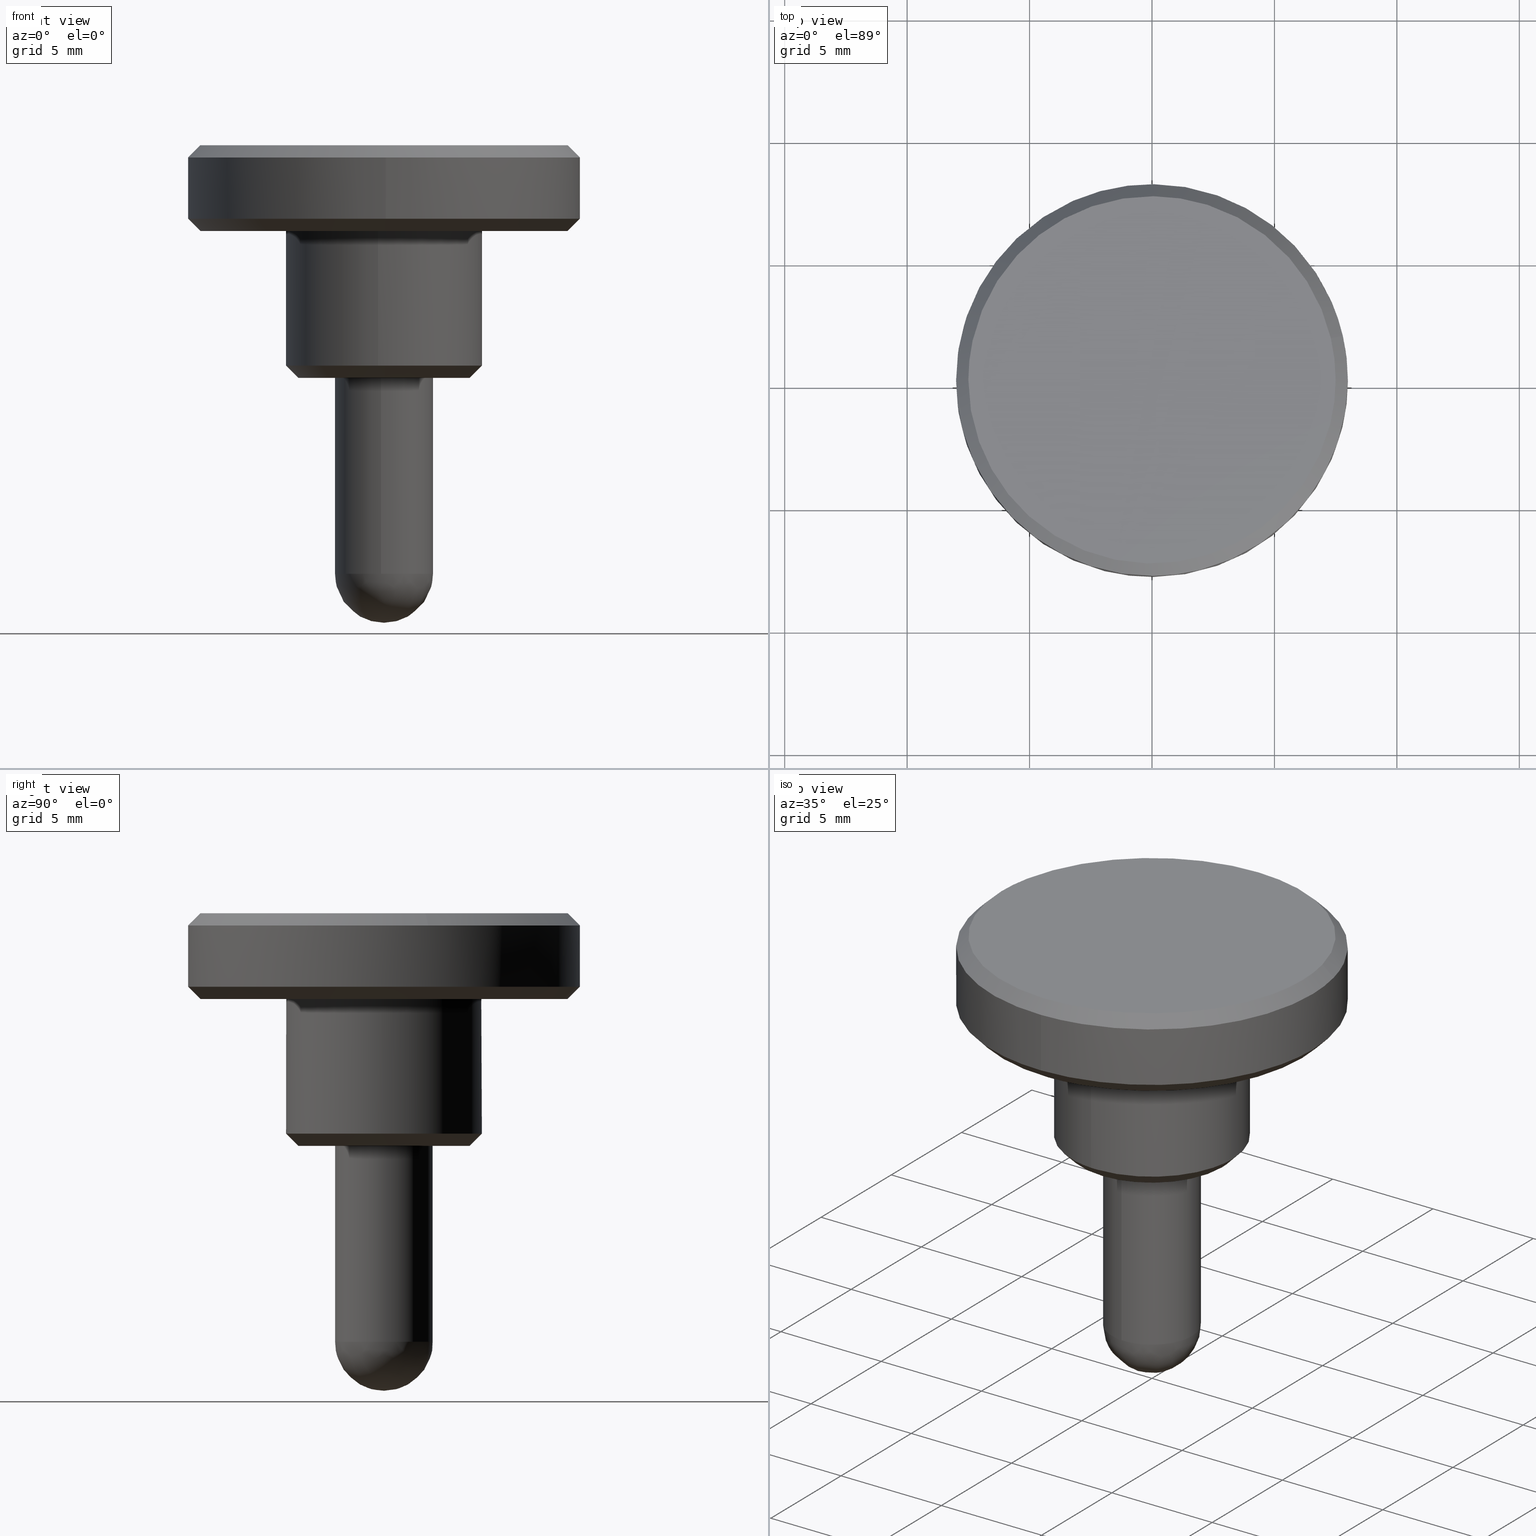
[diagram: canonical four-view strip — front | top / right | iso, engineering-drawing reading convention]
A machine part, canonical four-view strip (front | top / right | iso — engineering-drawing reading convention). The complete STEP part file that produces these views, byte-faithful:
ISO-10303-21;
HEADER;
/****************************************************************
 * Generated by software with PDE/Lib inside                    *
 * PDElib Version 4.4.1-0003, patched  Thursday August 19 11:58 *
 * International Technegroup Inc. (www.iti-oh.com)              *
 ****************************************************************/
FILE_DESCRIPTION((''),'2;1');
FILE_NAME('','2005-07-15T10:45:25',(''),(''),'','CADfix','');
FILE_SCHEMA(('AUTOMOTIVE_DESIGN'));
ENDSEC;
DATA;
#5=APPLICATION_CONTEXT('automotive design');
#6=APPLICATION_PROTOCOL_DEFINITION('Draft International Standard','automotive_design',1998,#5);
#7=PRODUCT_CONTEXT('None',#5,'mechanical');
#8=PRODUCT('knob','','None',(#7));
#9=PRODUCT_RELATED_PRODUCT_CATEGORY('part','description',(#8));
#10=PRODUCT_DEFINITION_FORMATION('None','None',#8);
#11=PRODUCT_DEFINITION_CONTEXT('part definition',#5,'design');
#12=PRODUCT_DEFINITION('None','None',#10,#11);
#18=(NAMED_UNIT(*)PLANE_ANGLE_UNIT()SI_UNIT($,.RADIAN.));
#19=DIMENSIONAL_EXPONENTS(0.0,0.0,0.0,0.0,0.0,0.0,0.0);
#20=PLANE_ANGLE_MEASURE_WITH_UNIT(PLANE_ANGLE_MEASURE(0.017453292500000),#18);
#24=(CONVERSION_BASED_UNIT('DEGREE',#20)NAMED_UNIT(#19)PLANE_ANGLE_UNIT());
#28=(NAMED_UNIT(*)SI_UNIT($,.STERADIAN.)SOLID_ANGLE_UNIT());
#32=(LENGTH_UNIT()NAMED_UNIT(*)SI_UNIT(.MILLI.,.METRE.));
#34=UNCERTAINTY_MEASURE_WITH_UNIT(LENGTH_MEASURE(0.001000000000000),#32,'DISTANCE_ACCURACY_VALUE','');
#36=(GEOMETRIC_REPRESENTATION_CONTEXT(3)GLOBAL_UNCERTAINTY_ASSIGNED_CONTEXT((#34))GLOBAL_UNIT_ASSIGNED_CONTEXT((#24,#28,#32))REPRESENTATION_CONTEXT('None','None'));
#37=AXIS2_PLACEMENT_3D('',#38,#39,#40);
#38=CARTESIAN_POINT('',(0.0,0.0,0.0));
#39=DIRECTION('',(0.0,0.0,1.0));
#40=DIRECTION('',(1.0,0.0,0.0));
#41=ADVANCED_BREP_SHAPE_REPRESENTATION('',(#37,#1160),#36);
#42=PRODUCT_DEFINITION_SHAPE('','',#12);
#43=SHAPE_DEFINITION_REPRESENTATION(#42,#41);
#44=CARTESIAN_POINT('',(0.236068469313507,1.986019052727249,-8.199999999999662));
#45=CARTESIAN_POINT('',(0.179229457275948,1.992775230897126,-8.199999999999662));
#46=CARTESIAN_POINT('',(0.122097079069709,1.996269596843649,-8.199999999999662));
#47=CARTESIAN_POINT('',(-1.874172517773940,2.118366675913357,-8.199999999999662));
#48=CARTESIAN_POINT('',(-1.996269596843649,0.122097079069709,-8.199999999999662));
#49=CARTESIAN_POINT('',(-2.118366675913357,-1.874172517773940,-8.199999999999662));
#50=CARTESIAN_POINT('',(-0.122097079069709,-1.996269596843649,-8.199999999999662));
#51=CARTESIAN_POINT('',(0.236068469313507,1.986019052727249,0.204999999999990));
#52=CARTESIAN_POINT('',(0.179229457275948,1.992775230897126,0.204999999999990));
#53=CARTESIAN_POINT('',(0.122097079069709,1.996269596843649,0.204999999999990));
#54=CARTESIAN_POINT('',(-1.874172517773940,2.118366675913357,0.204999999999990));
#55=CARTESIAN_POINT('',(-1.996269596843649,0.122097079069709,0.204999999999990));
#56=CARTESIAN_POINT('',(-2.118366675913357,-1.874172517773940,0.204999999999990));
#57=CARTESIAN_POINT('',(-0.122097079069709,-1.996269596843649,0.204999999999990));
#65=(BOUNDED_SURFACE()B_SPLINE_SURFACE(2,1,((#44,#51),(#45,#52),(#46,#53),(#47,#54),(#48,#55),(#49,#56),(#50,#57)),.UNSPECIFIED.,.F.,.F.,.U.)B_SPLINE_SURFACE_WITH_KNOTS((3,2,2,3),(2,2),(0.0,0.132548339959385,3.446256838944004,6.759965337928622),(0.0,8.404999999999655),.UNSPECIFIED.)GEOMETRIC_REPRESENTATION_ITEM()RATIONAL_B_SPLINE_SURFACE(((0.977505800795127,0.977505800795127),(0.988284271247462,0.988284271247462),(1.0,1.0),(0.707106781186548,0.707106781186548),(1.0,1.0),(0.707106781186548,0.707106781186548),(1.0,1.0)))REPRESENTATION_ITEM('')SURFACE());
#66=CARTESIAN_POINT('',(0.236068469329426,1.986019052725356,-7.999999999999669));
#67=VERTEX_POINT('',#66);
#68=CARTESIAN_POINT('',(-1.999999999999915,0.0,-7.999999999999669));
#69=VERTEX_POINT('',#68);
#70=CARTESIAN_POINT('',(0.236068469329426,1.986019052725357,-7.999999999999669));
#71=CARTESIAN_POINT('',(0.118448239319902,1.999999999999915,-7.999999999999668));
#72=CARTESIAN_POINT('',(0.0,1.999999999999915,-7.999999999999669));
#73=CARTESIAN_POINT('',(-1.999999999999915,1.999999999999915,-7.999999999999669));
#74=CARTESIAN_POINT('',(-1.999999999999915,0.0,-7.999999999999669));
#82=(BOUNDED_CURVE()B_SPLINE_CURVE(2,(#70,#71,#72,#73,#74),.UNSPECIFIED.,.F.,.U.)B_SPLINE_CURVE_WITH_KNOTS((3,2,3),(0.229562473512935,0.250000000000000,0.500000000000000),.UNSPECIFIED.)CURVE()GEOMETRIC_REPRESENTATION_ITEM()RATIONAL_B_SPLINE_CURVE((0.956026754182576,0.976055948330473,1.0,0.707106781186548,1.0))REPRESENTATION_ITEM(''));
#83=EDGE_CURVE('',#67,#69,#82,.T.);
#84=ORIENTED_EDGE('',*,*,#83,.T.);
#85=CARTESIAN_POINT('',(-0.122097079089714,-1.996269596842426,-7.999999999999668));
#86=VERTEX_POINT('',#85);
#87=CARTESIAN_POINT('',(-1.999999999999915,0.0,-7.999999999999669));
#88=CARTESIAN_POINT('',(-1.999999999999915,-1.881412133773529,-7.999999999999668));
#89=CARTESIAN_POINT('',(-0.122097079089714,-1.996269596842425,-7.999999999999668));
#97=(BOUNDED_CURVE()B_SPLINE_CURVE(2,(#87,#88,#89),.UNSPECIFIED.,.F.,.U.)B_SPLINE_CURVE_WITH_KNOTS((3,3),(0.500000000000000,0.739332962238510),.UNSPECIFIED.)CURVE()GEOMETRIC_REPRESENTATION_ITEM()RATIONAL_B_SPLINE_CURVE((1.0,0.719603993287218,0.976072041665790))REPRESENTATION_ITEM(''));
#98=EDGE_CURVE('',#69,#86,#97,.T.);
#99=ORIENTED_EDGE('',*,*,#98,.T.);
#100=CARTESIAN_POINT('',(-0.122097079089714,-1.996269596842426,-2.359224E-016));
#101=VERTEX_POINT('',#100);
#102=CARTESIAN_POINT('',(-0.122097079089714,-1.996269596842426,-7.999999999999668));
#103=CARTESIAN_POINT('',(-0.122097079089714,-1.996269596842426,-2.359224E-016));
#104=QUASI_UNIFORM_CURVE('',1,(#102,#103),.UNSPECIFIED.,.F.,.U.);
#105=EDGE_CURVE('',#86,#101,#104,.T.);
#106=ORIENTED_EDGE('',*,*,#105,.T.);
#107=CARTESIAN_POINT('',(-1.999999999999915,0.0,0.0));
#108=VERTEX_POINT('',#107);
#109=CARTESIAN_POINT('',(-1.999999999999915,0.0,0.0));
#110=CARTESIAN_POINT('',(-1.999999999999915,-1.881412133773529,0.0));
#111=CARTESIAN_POINT('',(-0.122097079089714,-1.996269596842425,-2.359224E-016));
#119=(BOUNDED_CURVE()B_SPLINE_CURVE(2,(#109,#110,#111),.UNSPECIFIED.,.F.,.U.)B_SPLINE_CURVE_WITH_KNOTS((3,3),(0.500000000000000,0.739332962238510),.UNSPECIFIED.)CURVE()GEOMETRIC_REPRESENTATION_ITEM()RATIONAL_B_SPLINE_CURVE((1.0,0.719603993287218,0.976072041665790))REPRESENTATION_ITEM(''));
#120=EDGE_CURVE('',#108,#101,#119,.T.);
#121=ORIENTED_EDGE('',*,*,#120,.F.);
#122=CARTESIAN_POINT('',(0.236068469329426,1.986019052725356,-2.271543E-016));
#123=VERTEX_POINT('',#122);
#124=CARTESIAN_POINT('',(0.236068469329426,1.986019052725356,-2.271543E-016));
#125=CARTESIAN_POINT('',(0.118448239319902,1.999999999999915,0.0));
#126=CARTESIAN_POINT('',(0.0,1.999999999999915,0.0));
#127=CARTESIAN_POINT('',(-1.999999999999915,1.999999999999915,0.0));
#128=CARTESIAN_POINT('',(-1.999999999999915,0.0,0.0));
#136=(BOUNDED_CURVE()B_SPLINE_CURVE(2,(#124,#125,#126,#127,#128),.UNSPECIFIED.,.F.,.U.)B_SPLINE_CURVE_WITH_KNOTS((3,2,3),(0.229562473512935,0.250000000000000,0.500000000000000),.UNSPECIFIED.)CURVE()GEOMETRIC_REPRESENTATION_ITEM()RATIONAL_B_SPLINE_CURVE((0.956026754182575,0.976055948330473,1.0,0.707106781186548,1.0))REPRESENTATION_ITEM(''));
#137=EDGE_CURVE('',#123,#108,#136,.T.);
#138=ORIENTED_EDGE('',*,*,#137,.F.);
#139=CARTESIAN_POINT('',(0.236068469329426,1.986019052725356,-7.999999999999669));
#140=CARTESIAN_POINT('',(0.236068469329426,1.986019052725356,-2.271543E-016));
#141=QUASI_UNIFORM_CURVE('',1,(#139,#140),.UNSPECIFIED.,.F.,.U.);
#142=EDGE_CURVE('',#67,#123,#141,.T.);
#143=ORIENTED_EDGE('',*,*,#142,.F.);
#144=EDGE_LOOP('',(#84,#99,#106,#121,#138,#143));
#145=FACE_OUTER_BOUND('',#144,.T.);
#146=ADVANCED_FACE('',(#145),#65,.T.);
#147=CARTESIAN_POINT('',(-0.122097079069709,-1.996269596843649,-8.199999999999662));
#148=CARTESIAN_POINT('',(1.874172517773940,-2.118366675913357,-8.199999999999662));
#149=CARTESIAN_POINT('',(1.996269596843649,-0.122097079069709,-8.199999999999662));
#150=CARTESIAN_POINT('',(2.111572393464965,1.763086981678927,-8.199999999999662));
#151=CARTESIAN_POINT('',(0.236068469313507,1.986019052727249,-8.199999999999662));
#152=CARTESIAN_POINT('',(-0.122097079069709,-1.996269596843649,0.204999999999990));
#153=CARTESIAN_POINT('',(1.874172517773940,-2.118366675913357,0.204999999999990));
#154=CARTESIAN_POINT('',(1.996269596843649,-0.122097079069709,0.204999999999990));
#155=CARTESIAN_POINT('',(2.111572393464965,1.763086981678927,0.204999999999990));
#156=CARTESIAN_POINT('',(0.236068469313507,1.986019052727249,0.204999999999990));
#164=(BOUNDED_SURFACE()B_SPLINE_SURFACE(2,1,((#147,#152),(#148,#153),(#149,#154),(#150,#155),(#151,#156)),.UNSPECIFIED.,.F.,.F.,.U.)B_SPLINE_SURFACE_WITH_KNOTS((3,2,3),(2,2),(0.0,3.313708498984619,6.494868658009852),(0.0,8.404999999999653),.UNSPECIFIED.)GEOMETRIC_REPRESENTATION_ITEM()RATIONAL_B_SPLINE_SURFACE(((1.0,1.0),(0.707106781186548,0.707106781186548),(1.0,1.0),(0.718822509939086,0.718822509939086),(0.977505800795127,0.977505800795127)))REPRESENTATION_ITEM('')SURFACE());
#165=CARTESIAN_POINT('',(1.999999999999915,0.0,-7.999999999999669));
#166=VERTEX_POINT('',#165);
#167=CARTESIAN_POINT('',(1.999999999999915,0.0,-7.999999999999669));
#168=CARTESIAN_POINT('',(1.999999999999914,1.776349051873983,-7.999999999999667));
#169=CARTESIAN_POINT('',(0.236068469329426,1.986019052725356,-7.999999999999670));
#177=(BOUNDED_CURVE()B_SPLINE_CURVE(2,(#167,#168,#169),.UNSPECIFIED.,.F.,.U.)B_SPLINE_CURVE_WITH_KNOTS((3,3),(0.0,0.229562473512935),.UNSPECIFIED.)CURVE()GEOMETRIC_REPRESENTATION_ITEM()RATIONAL_B_SPLINE_CURVE((1.0,0.731050832856074,0.956026754182575))REPRESENTATION_ITEM(''));
#178=EDGE_CURVE('',#166,#67,#177,.T.);
#179=ORIENTED_EDGE('',*,*,#178,.T.);
#180=ORIENTED_EDGE('',*,*,#142,.T.);
#181=CARTESIAN_POINT('',(1.999999999999915,0.0,0.0));
#182=VERTEX_POINT('',#181);
#183=CARTESIAN_POINT('',(1.999999999999915,0.0,0.0));
#184=CARTESIAN_POINT('',(1.999999999999916,1.776349051873981,0.0));
#185=CARTESIAN_POINT('',(0.236068469329426,1.986019052725356,-2.271543E-016));
#193=(BOUNDED_CURVE()B_SPLINE_CURVE(2,(#183,#184,#185),.UNSPECIFIED.,.F.,.U.)B_SPLINE_CURVE_WITH_KNOTS((3,3),(0.0,0.229562473512935),.UNSPECIFIED.)CURVE()GEOMETRIC_REPRESENTATION_ITEM()RATIONAL_B_SPLINE_CURVE((1.0,0.731050832856074,0.956026754182575))REPRESENTATION_ITEM(''));
#194=EDGE_CURVE('',#182,#123,#193,.T.);
#195=ORIENTED_EDGE('',*,*,#194,.F.);
#196=CARTESIAN_POINT('',(-0.122097079089713,-1.996269596842425,-2.359224E-016));
#197=CARTESIAN_POINT('',(-0.061105526617236,-1.999999999999915,0.0));
#198=CARTESIAN_POINT('',(0.0,-1.999999999999915,0.0));
#199=CARTESIAN_POINT('',(1.999999999999915,-1.999999999999915,0.0));
#200=CARTESIAN_POINT('',(1.999999999999915,0.0,0.0));
#208=(BOUNDED_CURVE()B_SPLINE_CURVE(2,(#196,#197,#198,#199,#200),.UNSPECIFIED.,.F.,.U.)B_SPLINE_CURVE_WITH_KNOTS((3,2,3),(0.739332962238510,0.750000000000000,1.0),.UNSPECIFIED.)CURVE()GEOMETRIC_REPRESENTATION_ITEM()RATIONAL_B_SPLINE_CURVE((0.976072041665790,0.987502787899330,1.0,0.707106781186548,1.0))REPRESENTATION_ITEM(''));
#209=EDGE_CURVE('',#101,#182,#208,.T.);
#210=ORIENTED_EDGE('',*,*,#209,.F.);
#211=ORIENTED_EDGE('',*,*,#105,.F.);
#212=CARTESIAN_POINT('',(-0.122097079089713,-1.996269596842425,-7.999999999999668));
#213=CARTESIAN_POINT('',(-0.061105526617236,-1.999999999999915,-7.999999999999668));
#214=CARTESIAN_POINT('',(0.0,-1.999999999999915,-7.999999999999669));
#215=CARTESIAN_POINT('',(1.999999999999915,-1.999999999999915,-7.999999999999669));
#216=CARTESIAN_POINT('',(1.999999999999915,0.0,-7.999999999999669));
#224=(BOUNDED_CURVE()B_SPLINE_CURVE(2,(#212,#213,#214,#215,#216),.UNSPECIFIED.,.F.,.U.)B_SPLINE_CURVE_WITH_KNOTS((3,2,3),(0.739332962238510,0.750000000000000,1.0),.UNSPECIFIED.)CURVE()GEOMETRIC_REPRESENTATION_ITEM()RATIONAL_B_SPLINE_CURVE((0.976072041665790,0.987502787899330,1.0,0.707106781186548,1.0))REPRESENTATION_ITEM(''));
#225=EDGE_CURVE('',#86,#166,#224,.T.);
#226=ORIENTED_EDGE('',*,*,#225,.T.);
#227=EDGE_LOOP('',(#179,#180,#195,#210,#211,#226));
#228=FACE_OUTER_BOUND('',#227,.T.);
#229=ADVANCED_FACE('',(#228),#164,.T.);
#230=CARTESIAN_POINT('',(7.294458421924698,1.689240237743507,9.512499999999999));
#231=CARTESIAN_POINT('',(7.494970729498896,0.823390219490366,9.512500000000001));
#232=CARTESIAN_POINT('',(7.487214898942977,-0.065339934544074,9.512500000000001));
#233=CARTESIAN_POINT('',(7.421874964398903,-7.552554833487053,9.512500000000001));
#234=CARTESIAN_POINT('',(-0.065339934544074,-7.487214898942977,9.512500000000001));
#235=CARTESIAN_POINT('',(-7.552554833487053,-7.421874964398903,9.512500000000001));
#236=CARTESIAN_POINT('',(-7.487214898942977,0.065339934544074,9.512500000000001));
#237=CARTESIAN_POINT('',(-7.421874964398903,7.552554833487053,9.512500000000001));
#238=CARTESIAN_POINT('',(0.065339934544074,7.487214898942977,9.512500000000001));
#239=CARTESIAN_POINT('',(7.806227395516387,1.807754963939131,8.987187499999997));
#240=CARTESIAN_POINT('',(8.020807365404117,0.881158122619058,8.987187499999997));
#241=CARTESIAN_POINT('',(8.012507396652685,-0.069924092723065,8.987187499999997));
#242=CARTESIAN_POINT('',(7.942583303929622,-8.082431489375750,8.987187499999997));
#243=CARTESIAN_POINT('',(-0.069924092723065,-8.012507396652685,8.987187499999997));
#244=CARTESIAN_POINT('',(-8.082431489375750,-7.942583303929622,8.987187499999997));
#245=CARTESIAN_POINT('',(-8.012507396652685,0.069924092723065,8.987187499999997));
#246=CARTESIAN_POINT('',(-7.942583303929622,8.082431489375750,8.987187499999997));
#247=CARTESIAN_POINT('',(0.069924092723065,8.012507396652685,8.987187499999997));
#255=(BOUNDED_SURFACE()B_SPLINE_SURFACE(2,1,((#230,#239),(#231,#240),(#232,#241),(#233,#242),(#234,#243),(#235,#244),(#236,#245),(#237,#246),(#238,#247)),.UNSPECIFIED.,.F.,.F.,.U.)B_SPLINE_SURFACE_WITH_KNOTS((3,2,2,2,3),(2,2),(0.0,2.124169990561722,15.400232431572480,28.676294872583231,41.952357313593993),(0.0,1.0),.UNSPECIFIED.)GEOMETRIC_REPRESENTATION_ITEM()RATIONAL_B_SPLINE_SURFACE(((0.921270302782944,0.921270302782944),(0.953137084989848,0.953137084989848),(1.0,1.0),(0.707106781186548,0.707106781186548),(1.0,1.0),(0.707106781186548,0.707106781186548),(1.0,1.0),(0.707106781186548,0.707106781186548),(1.0,1.0)))REPRESENTATION_ITEM('')SURFACE());
#256=CARTESIAN_POINT('',(7.793745225428513,1.804864360863222,8.999999999999780));
#257=VERTEX_POINT('',#256);
#258=CARTESIAN_POINT('',(8.0,0.0,9.0));
#259=VERTEX_POINT('',#258);
#260=CARTESIAN_POINT('',(7.793745225428513,1.804864360863222,8.999999999999780));
#261=CARTESIAN_POINT('',(8.0,0.914217285439979,9.0));
#262=CARTESIAN_POINT('',(8.0,0.0,9.0));
#270=(BOUNDED_CURVE()B_SPLINE_CURVE(2,(#260,#261,#262),.UNSPECIFIED.,.F.,.U.)B_SPLINE_CURVE_WITH_KNOTS((3,3),(0.961422971784526,1.0),.UNSPECIFIED.)CURVE()GEOMETRIC_REPRESENTATION_ITEM()RATIONAL_B_SPLINE_CURVE((0.923556557442650,0.954804200134849,1.0))REPRESENTATION_ITEM(''));
#271=EDGE_CURVE('',#257,#259,#270,.T.);
#272=ORIENTED_EDGE('',*,*,#271,.F.);
#273=CARTESIAN_POINT('',(7.306636148837367,1.692060338325562,9.499999999997908));
#274=VERTEX_POINT('',#273);
#275=CARTESIAN_POINT('',(7.306636148837367,1.692060338325562,9.499999999997908));
#276=CARTESIAN_POINT('',(7.793745225428513,1.804864360863222,8.999999999999780));
#277=QUASI_UNIFORM_CURVE('',1,(#275,#276),.UNSPECIFIED.,.F.,.U.);
#278=EDGE_CURVE('',#274,#257,#277,.T.);
#279=ORIENTED_EDGE('',*,*,#278,.F.);
#280=CARTESIAN_POINT('',(7.500000000000000,0.0,9.500000000000000));
#281=VERTEX_POINT('',#280);
#282=CARTESIAN_POINT('',(7.500000000000000,0.0,9.500000000000000));
#283=CARTESIAN_POINT('',(7.500000000000000,0.857078705116508,9.500000000000000));
#284=CARTESIAN_POINT('',(7.306636148837367,1.692060338325562,9.499999999997908));
#292=(BOUNDED_CURVE()B_SPLINE_CURVE(2,(#282,#283,#284),.UNSPECIFIED.,.F.,.U.)B_SPLINE_CURVE_WITH_KNOTS((3,3),(0.500000000000000,0.538577028216185),.UNSPECIFIED.)CURVE()GEOMETRIC_REPRESENTATION_ITEM()RATIONAL_B_SPLINE_CURVE((1.0,0.954804200134017,0.923556557441499))REPRESENTATION_ITEM(''));
#293=EDGE_CURVE('',#281,#274,#292,.T.);
#294=ORIENTED_EDGE('',*,*,#293,.F.);
#295=CARTESIAN_POINT('',(-7.500000000000000,0.0,9.500000000000000));
#296=VERTEX_POINT('',#295);
#297=CARTESIAN_POINT('',(-7.500000000000000,0.0,9.500000000000000));
#298=CARTESIAN_POINT('',(-7.500000000000000,-7.500000000000000,9.500000000000000));
#299=CARTESIAN_POINT('',(0.0,-7.500000000000000,9.500000000000000));
#300=CARTESIAN_POINT('',(7.500000000000000,-7.500000000000000,9.500000000000000));
#301=CARTESIAN_POINT('',(7.500000000000000,0.0,9.500000000000000));
#309=(BOUNDED_CURVE()B_SPLINE_CURVE(2,(#297,#298,#299,#300,#301),.UNSPECIFIED.,.F.,.U.)B_SPLINE_CURVE_WITH_KNOTS((3,2,3),(0.0,0.250000000000000,0.500000000000000),.UNSPECIFIED.)CURVE()GEOMETRIC_REPRESENTATION_ITEM()RATIONAL_B_SPLINE_CURVE((1.0,0.707106781186547,1.0,0.707106781186547,1.0))REPRESENTATION_ITEM(''));
#310=EDGE_CURVE('',#296,#281,#309,.T.);
#311=ORIENTED_EDGE('',*,*,#310,.F.);
#312=CARTESIAN_POINT('',(0.065449016255933,7.499714422983592,9.499999999997533));
#313=VERTEX_POINT('',#312);
#314=CARTESIAN_POINT('',(0.065449016255933,7.499714422983592,9.499999999997533));
#315=CARTESIAN_POINT('',(0.032725131173370,7.500000000000000,9.500000000000000));
#316=CARTESIAN_POINT('',(0.0,7.500000000000000,9.500000000000000));
#317=CARTESIAN_POINT('',(-7.500000000000000,7.500000000000000,9.500000000000000));
#318=CARTESIAN_POINT('',(-7.500000000000000,0.0,9.500000000000000));
#326=(BOUNDED_CURVE()B_SPLINE_CURVE(2,(#314,#315,#316,#317,#318),.UNSPECIFIED.,.F.,.U.)B_SPLINE_CURVE_WITH_KNOTS((3,2,3),(0.748460105664162,0.750000000000000,1.0),.UNSPECIFIED.)CURVE()GEOMETRIC_REPRESENTATION_ITEM()RATIONAL_B_SPLINE_CURVE((0.996414028098437,0.998195901565376,1.0,0.707106781186547,1.0))REPRESENTATION_ITEM(''));
#327=EDGE_CURVE('',#313,#296,#326,.T.);
#328=ORIENTED_EDGE('',*,*,#327,.F.);
#329=CARTESIAN_POINT('',(0.069812284012937,7.999695384516684,8.999999999996485));
#330=VERTEX_POINT('',#329);
#331=CARTESIAN_POINT('',(0.065449016255933,7.499714422983592,9.499999999997533));
#332=CARTESIAN_POINT('',(0.069812284012937,7.999695384516684,8.999999999996485));
#333=QUASI_UNIFORM_CURVE('',1,(#331,#332),.UNSPECIFIED.,.F.,.U.);
#334=EDGE_CURVE('',#313,#330,#333,.T.);
#335=ORIENTED_EDGE('',*,*,#334,.T.);
#336=CARTESIAN_POINT('',(-0.993019726392196,7.938130247292321,8.999999999999975));
#337=VERTEX_POINT('',#336);
#338=CARTESIAN_POINT('',(-0.993019726392196,7.938130247292321,8.999999999999975));
#339=CARTESIAN_POINT('',(-0.498437250033628,8.0,9.0));
#340=CARTESIAN_POINT('',(0.0,8.0,9.0));
#341=CARTESIAN_POINT('',(0.034906806591551,8.0,9.0));
#342=CARTESIAN_POINT('',(0.069812284012937,7.999695384516684,8.999999999996485));
#350=(BOUNDED_CURVE()B_SPLINE_CURVE(2,(#338,#339,#340,#341,#342),.UNSPECIFIED.,.F.,.U.)B_SPLINE_CURVE_WITH_KNOTS((3,2,3),(0.728526162175782,0.750000000000000,0.751539894336129),.UNSPECIFIED.)CURVE()GEOMETRIC_REPRESENTATION_ITEM()RATIONAL_B_SPLINE_CURVE((0.954005607154882,0.974841834077547,1.0,0.998195901565034,0.996414028097762))REPRESENTATION_ITEM(''));
#351=EDGE_CURVE('',#337,#330,#350,.T.);
#352=ORIENTED_EDGE('',*,*,#351,.F.);
#353=CARTESIAN_POINT('',(-8.0,0.0,9.0));
#354=VERTEX_POINT('',#353);
#355=CARTESIAN_POINT('',(-8.0,0.0,9.0));
#356=CARTESIAN_POINT('',(-8.0,7.061592647459215,9.000000000000002));
#357=CARTESIAN_POINT('',(-0.993019726392196,7.938130247292321,8.999999999999975));
#365=(BOUNDED_CURVE()B_SPLINE_CURVE(2,(#355,#356,#357),.UNSPECIFIED.,.F.,.U.)B_SPLINE_CURVE_WITH_KNOTS((3,3),(0.500000000000000,0.728526162175782),.UNSPECIFIED.)CURVE()GEOMETRIC_REPRESENTATION_ITEM()RATIONAL_B_SPLINE_CURVE((1.0,0.732264947109001,0.954005607154882))REPRESENTATION_ITEM(''));
#366=EDGE_CURVE('',#354,#337,#365,.T.);
#367=ORIENTED_EDGE('',*,*,#366,.F.);
#368=CARTESIAN_POINT('',(0.069806294353646,-7.999695436779622,9.000000000000018));
#369=VERTEX_POINT('',#368);
#370=CARTESIAN_POINT('',(0.069806294353646,-7.999695436779622,9.000000000000018));
#371=CARTESIAN_POINT('',(0.034903811577907,-8.0,9.000000000000002));
#372=CARTESIAN_POINT('',(0.0,-8.0,9.0));
#373=CARTESIAN_POINT('',(-8.0,-8.0,9.000000000000002));
#374=CARTESIAN_POINT('',(-8.0,0.0,9.0));
#382=(BOUNDED_CURVE()B_SPLINE_CURVE(2,(#370,#371,#372,#373,#374),.UNSPECIFIED.,.F.,.U.)B_SPLINE_CURVE_WITH_KNOTS((3,2,3),(0.248460237548887,0.250000000000000,0.500000000000000),.UNSPECIFIED.)CURVE()GEOMETRIC_REPRESENTATION_ITEM()RATIONAL_B_SPLINE_CURVE((0.996414333316804,0.998196056077941,1.0,0.707106781186548,1.0))REPRESENTATION_ITEM(''));
#383=EDGE_CURVE('',#369,#354,#382,.T.);
#384=ORIENTED_EDGE('',*,*,#383,.F.);
#385=CARTESIAN_POINT('',(8.0,0.0,9.0));
#386=CARTESIAN_POINT('',(8.0,-7.930495622804870,9.0));
#387=CARTESIAN_POINT('',(0.069806294353646,-7.999695436779622,9.000000000000018));
#395=(BOUNDED_CURVE()B_SPLINE_CURVE(2,(#385,#386,#387),.UNSPECIFIED.,.F.,.U.)B_SPLINE_CURVE_WITH_KNOTS((3,3),(0.0,0.248460237548887),.UNSPECIFIED.)CURVE()GEOMETRIC_REPRESENTATION_ITEM()RATIONAL_B_SPLINE_CURVE((1.0,0.708910725108606,0.996414333316804))REPRESENTATION_ITEM(''));
#396=EDGE_CURVE('',#259,#369,#395,.T.);
#397=ORIENTED_EDGE('',*,*,#396,.F.);
#398=EDGE_LOOP('',(#272,#279,#294,#311,#328,#335,#352,#367,#384,#397));
#399=FACE_OUTER_BOUND('',#398,.T.);
#400=ADVANCED_FACE('',(#399),#255,.T.);
#401=CARTESIAN_POINT('',(0.065339934544074,7.487214898942977,9.512500000000001));
#402=CARTESIAN_POINT('',(5.963692058399673,7.435740759774748,9.512500000000001));
#403=CARTESIAN_POINT('',(7.294458421924698,1.689240237743507,9.512499999999999));
#404=CARTESIAN_POINT('',(0.069924092723065,8.012507396652685,8.987187499999997));
#405=CARTESIAN_POINT('',(6.382096330109651,7.957421904064514,8.987187499999997));
#406=CARTESIAN_POINT('',(7.806227395516387,1.807754963939131,8.987187499999997));
#414=(BOUNDED_SURFACE()B_SPLINE_SURFACE(2,1,((#401,#404),(#402,#405),(#403,#406)),.UNSPECIFIED.,.F.,.F.,.U.)B_SPLINE_SURFACE_WITH_KNOTS((3,3),(2,2),(0.0,11.103124578239370),(0.0,1.0),.UNSPECIFIED.)GEOMETRIC_REPRESENTATION_ITEM()RATIONAL_B_SPLINE_SURFACE(((1.0,1.0),(0.753969696196700,0.753969696196700),(0.921270302782944,0.921270302782944)))REPRESENTATION_ITEM('')SURFACE());
#415=CARTESIAN_POINT('',(0.069812284012937,7.999695384516684,8.999999999996485));
#416=CARTESIAN_POINT('',(6.371891347878983,7.944697973675043,9.0));
#417=CARTESIAN_POINT('',(7.793745225428513,1.804864360863222,8.999999999999780));
#425=(BOUNDED_CURVE()B_SPLINE_CURVE(2,(#415,#416,#417),.UNSPECIFIED.,.F.,.U.)B_SPLINE_CURVE_WITH_KNOTS((3,3),(0.751539894336128,0.961422971784527),.UNSPECIFIED.)CURVE()GEOMETRIC_REPRESENTATION_ITEM()RATIONAL_B_SPLINE_CURVE((0.996414028097765,0.753549905436829,0.923556557442651))REPRESENTATION_ITEM(''));
#426=EDGE_CURVE('',#330,#257,#425,.T.);
#427=ORIENTED_EDGE('',*,*,#426,.F.);
#428=ORIENTED_EDGE('',*,*,#334,.F.);
#429=CARTESIAN_POINT('',(7.306636148837367,1.692060338325561,9.499999999997908));
#430=CARTESIAN_POINT('',(5.973648138607844,7.448154350330355,9.500000000000002));
#431=CARTESIAN_POINT('',(0.065449016255933,7.499714422983592,9.499999999997533));
#439=(BOUNDED_CURVE()B_SPLINE_CURVE(2,(#429,#430,#431),.UNSPECIFIED.,.F.,.U.)B_SPLINE_CURVE_WITH_KNOTS((3,3),(0.538577028216184,0.748460105664162),.UNSPECIFIED.)CURVE()GEOMETRIC_REPRESENTATION_ITEM()RATIONAL_B_SPLINE_CURVE((0.923556557441500,0.753549905437415,0.996414028098437))REPRESENTATION_ITEM(''));
#440=EDGE_CURVE('',#274,#313,#439,.T.);
#441=ORIENTED_EDGE('',*,*,#440,.F.);
#442=ORIENTED_EDGE('',*,*,#278,.T.);
#443=EDGE_LOOP('',(#427,#428,#441,#442));
#444=FACE_OUTER_BOUND('',#443,.T.);
#445=ADVANCED_FACE('',(#444),#414,.T.);
#446=CARTESIAN_POINT('',(3.026563047009186,6.848545274178859,5.987499999999998));
#447=CARTESIAN_POINT('',(1.549484936269210,7.501307262095740,5.987499999999998));
#448=CARTESIAN_POINT('',(-0.065339934544074,7.487214898942923,5.987499999999999));
#449=CARTESIAN_POINT('',(-7.552554833486997,7.421874964398849,5.987500000000000));
#450=CARTESIAN_POINT('',(-7.487214898942923,-0.065339934544074,5.987499999999999));
#451=CARTESIAN_POINT('',(-7.421874964398849,-7.552554833486997,5.987500000000000));
#452=CARTESIAN_POINT('',(0.065339934544074,-7.487214898942923,5.987499999999999));
#453=CARTESIAN_POINT('',(3.238902466125340,7.329029606645305,6.512812500000002));
#454=CARTESIAN_POINT('',(1.658194626497459,8.027588460242001,6.512812500000002));
#455=CARTESIAN_POINT('',(-0.069924092723064,8.012507396652628,6.512812500000001));
#456=CARTESIAN_POINT('',(-8.082431489375692,7.942583303929566,6.512812500000001));
#457=CARTESIAN_POINT('',(-8.012507396652628,-0.069924092723064,6.512812500000001));
#458=CARTESIAN_POINT('',(-7.942583303929566,-8.082431489375692,6.512812500000001));
#459=CARTESIAN_POINT('',(0.069924092723064,-8.012507396652628,6.512812500000001));
#467=(BOUNDED_SURFACE()B_SPLINE_SURFACE(2,1,((#446,#453),(#447,#454),(#448,#455),(#449,#456),(#450,#457),(#451,#458),(#452,#459)),.UNSPECIFIED.,.F.,.F.,.U.)B_SPLINE_SURFACE_WITH_KNOTS((3,2,2,3),(2,2),(0.0,3.717297483482986,16.993359924493650,30.269422365504312),(0.0,1.0),.UNSPECIFIED.)GEOMETRIC_REPRESENTATION_ITEM()RATIONAL_B_SPLINE_SURFACE(((0.881905454174416,0.881905454174416),(0.917989898732233,0.917989898732233),(1.0,1.0),(0.707106781186548,0.707106781186548),(1.0,1.0),(0.707106781186548,0.707106781186548),(1.0,1.0)))REPRESENTATION_ITEM('')SURFACE());
#468=CARTESIAN_POINT('',(3.233723455905026,7.317310476584448,6.500000000000181));
#469=VERTEX_POINT('',#468);
#470=CARTESIAN_POINT('',(-0.993020557150738,7.938130143369020,6.500000000000000));
#471=VERTEX_POINT('',#470);
#472=CARTESIAN_POINT('',(3.233723455905026,7.317310476584448,6.500000000000182));
#473=CARTESIAN_POINT('',(1.688924938017294,8.0,6.500000000000000));
#474=CARTESIAN_POINT('',(0.0,8.0,6.500000000000000));
#475=CARTESIAN_POINT('',(-0.498437670275357,8.0,6.499999999999999));
#476=CARTESIAN_POINT('',(-0.993020557150738,7.938130143369020,6.500000000000000));
#484=(BOUNDED_CURVE()B_SPLINE_CURVE(2,(#472,#473,#474,#475,#476),.UNSPECIFIED.,.F.,.U.)B_SPLINE_CURVE_WITH_KNOTS((3,2,3),(0.181361578459850,0.250000000000000,0.271473855473722),.UNSPECIFIED.)CURVE()GEOMETRIC_REPRESENTATION_ITEM()RATIONAL_B_SPLINE_CURVE((0.883326595751797,0.919585087123324,1.0,0.974841813399867,0.954005572903991))REPRESENTATION_ITEM(''));
#485=EDGE_CURVE('',#469,#471,#484,.T.);
#486=ORIENTED_EDGE('',*,*,#485,.F.);
#487=CARTESIAN_POINT('',(3.031615739919216,6.859978571795065,6.000000000000922));
#488=VERTEX_POINT('',#487);
#489=CARTESIAN_POINT('',(3.031615739919216,6.859978571795065,6.000000000000922));
#490=CARTESIAN_POINT('',(3.233723455905026,7.317310476584448,6.500000000000181));
#491=QUASI_UNIFORM_CURVE('',1,(#489,#490),.UNSPECIFIED.,.F.,.U.);
#492=EDGE_CURVE('',#488,#469,#491,.T.);
#493=ORIENTED_EDGE('',*,*,#492,.F.);
#494=CARTESIAN_POINT('',(-7.500000000000000,0.0,6.0));
#495=VERTEX_POINT('',#494);
#496=CARTESIAN_POINT('',(-7.500000000000000,0.0,6.0));
#497=CARTESIAN_POINT('',(-7.500000000000000,7.500000000000000,6.0));
#498=CARTESIAN_POINT('',(0.0,7.500000000000000,6.0));
#499=CARTESIAN_POINT('',(1.583367129400306,7.500000000000000,6.000000000000002));
#500=CARTESIAN_POINT('',(3.031615739919216,6.859978571795065,6.000000000000922));
#508=(BOUNDED_CURVE()B_SPLINE_CURVE(2,(#496,#497,#498,#499,#500),.UNSPECIFIED.,.F.,.U.)B_SPLINE_CURVE_WITH_KNOTS((3,2,3),(0.0,0.250000000000000,0.318638421540512),.UNSPECIFIED.)CURVE()GEOMETRIC_REPRESENTATION_ITEM()RATIONAL_B_SPLINE_CURVE((1.0,0.707106781186547,1.0,0.919585087122899,0.883326595751414))REPRESENTATION_ITEM(''));
#509=EDGE_CURVE('',#495,#488,#508,.T.);
#510=ORIENTED_EDGE('',*,*,#509,.F.);
#511=CARTESIAN_POINT('',(0.065449016255935,-7.499714422983579,6.000000000002481));
#512=VERTEX_POINT('',#511);
#513=CARTESIAN_POINT('',(0.065449016255935,-7.499714422983579,6.000000000002481));
#514=CARTESIAN_POINT('',(0.032725131173372,-7.499999999999999,6.0));
#515=CARTESIAN_POINT('',(0.0,-7.500000000000000,6.0));
#516=CARTESIAN_POINT('',(-7.500000000000000,-7.500000000000000,6.0));
#517=CARTESIAN_POINT('',(-7.500000000000000,0.0,6.0));
#525=(BOUNDED_CURVE()B_SPLINE_CURVE(2,(#513,#514,#515,#516,#517),.UNSPECIFIED.,.F.,.U.)B_SPLINE_CURVE_WITH_KNOTS((3,2,3),(0.748460105664162,0.750000000000000,1.0),.UNSPECIFIED.)CURVE()GEOMETRIC_REPRESENTATION_ITEM()RATIONAL_B_SPLINE_CURVE((0.996414028098437,0.998195901565376,1.0,0.707106781186547,1.0))REPRESENTATION_ITEM(''));
#526=EDGE_CURVE('',#512,#495,#525,.T.);
#527=ORIENTED_EDGE('',*,*,#526,.F.);
#528=CARTESIAN_POINT('',(0.069809143826576,-7.999695411913435,6.499999999998768));
#529=VERTEX_POINT('',#528);
#530=CARTESIAN_POINT('',(0.065449016255935,-7.499714422983579,6.000000000002481));
#531=CARTESIAN_POINT('',(0.069809143826576,-7.999695411913435,6.499999999998768));
#532=QUASI_UNIFORM_CURVE('',1,(#530,#531),.UNSPECIFIED.,.F.,.U.);
#533=EDGE_CURVE('',#512,#529,#532,.T.);
#534=ORIENTED_EDGE('',*,*,#533,.T.);
#535=CARTESIAN_POINT('',(-8.0,0.0,6.500000000000000));
#536=VERTEX_POINT('',#535);
#537=CARTESIAN_POINT('',(-8.0,0.0,6.500000000000000));
#538=CARTESIAN_POINT('',(-8.0,-8.0,6.500000000000001));
#539=CARTESIAN_POINT('',(0.0,-8.0,6.500000000000000));
#540=CARTESIAN_POINT('',(0.034905236395741,-8.0,6.500000000000002));
#541=CARTESIAN_POINT('',(0.069809143826576,-7.999695411913435,6.499999999998768));
#549=(BOUNDED_CURVE()B_SPLINE_CURVE(2,(#537,#538,#539,#540,#541),.UNSPECIFIED.,.F.,.U.)B_SPLINE_CURVE_WITH_KNOTS((3,2,3),(0.500000000000000,0.750000000000000,0.751539825192777),.UNSPECIFIED.)CURVE()GEOMETRIC_REPRESENTATION_ITEM()RATIONAL_B_SPLINE_CURVE((1.0,0.707106781186548,1.0,0.998195982571510,0.996414188114897))REPRESENTATION_ITEM(''));
#550=EDGE_CURVE('',#536,#529,#549,.T.);
#551=ORIENTED_EDGE('',*,*,#550,.F.);
#552=CARTESIAN_POINT('',(-0.993020557150738,7.938130143369020,6.500000000000000));
#553=CARTESIAN_POINT('',(-8.0,7.061591902674117,6.500000000000002));
#554=CARTESIAN_POINT('',(-8.0,0.0,6.500000000000000));
#562=(BOUNDED_CURVE()B_SPLINE_CURVE(2,(#552,#553,#554),.UNSPECIFIED.,.F.,.U.)B_SPLINE_CURVE_WITH_KNOTS((3,3),(0.271473855473722,0.500000000000000),.UNSPECIFIED.)CURVE()GEOMETRIC_REPRESENTATION_ITEM()RATIONAL_B_SPLINE_CURVE((0.954005572903991,0.732264967786681,1.0))REPRESENTATION_ITEM(''));
#563=EDGE_CURVE('',#471,#536,#562,.T.);
#564=ORIENTED_EDGE('',*,*,#563,.F.);
#565=EDGE_LOOP('',(#486,#493,#510,#527,#534,#551,#564));
#566=FACE_OUTER_BOUND('',#565,.T.);
#567=ADVANCED_FACE('',(#566),#467,.T.);
#568=CARTESIAN_POINT('',(0.065339934544074,-7.487214898942923,5.987499999999999));
#569=CARTESIAN_POINT('',(7.552554833486997,-7.421874964398849,5.987500000000000));
#570=CARTESIAN_POINT('',(7.487214898942923,0.065339934544074,5.987499999999999));
#571=CARTESIAN_POINT('',(7.445059339336359,4.895888605305786,5.987499999999998));
#572=CARTESIAN_POINT('',(3.026563047009186,6.848545274178859,5.987499999999998));
#573=CARTESIAN_POINT('',(0.069924092723064,-8.012507396652628,6.512812500000001));
#574=CARTESIAN_POINT('',(8.082431489375692,-7.942583303929566,6.512812500000001));
#575=CARTESIAN_POINT('',(8.012507396652628,0.069924092723064,6.512812500000001));
#576=CARTESIAN_POINT('',(7.967394262100380,5.239377284167221,6.512812500000001));
#577=CARTESIAN_POINT('',(3.238902466125340,7.329029606645305,6.512812500000002));
#585=(BOUNDED_SURFACE()B_SPLINE_SURFACE(2,1,((#568,#573),(#569,#574),(#570,#575),(#571,#576),(#572,#577)),.UNSPECIFIED.,.F.,.F.,.U.)B_SPLINE_SURFACE_WITH_KNOTS((3,2,3),(2,2),(0.0,13.276062441010660,22.834827398538330),(0.0,1.0),.UNSPECIFIED.)GEOMETRIC_REPRESENTATION_ITEM()RATIONAL_B_SPLINE_SURFACE(((1.0,1.0),(0.707106781186548,0.707106781186548),(1.0,1.0),(0.789116882454314,0.789116882454314),(0.881905454174416,0.881905454174416)))REPRESENTATION_ITEM('')SURFACE());
#586=CARTESIAN_POINT('',(8.0,0.0,6.500000000000000));
#587=VERTEX_POINT('',#586);
#588=CARTESIAN_POINT('',(8.0,0.0,6.500000000000000));
#589=CARTESIAN_POINT('',(8.0,5.210960020729960,6.500000000000000));
#590=CARTESIAN_POINT('',(3.233723455905025,7.317310476584449,6.500000000000183));
#598=(BOUNDED_CURVE()B_SPLINE_CURVE(2,(#588,#589,#590),.UNSPECIFIED.,.F.,.U.)B_SPLINE_CURVE_WITH_KNOTS((3,3),(0.0,0.181361578459850),.UNSPECIFIED.)CURVE()GEOMETRIC_REPRESENTATION_ITEM()RATIONAL_B_SPLINE_CURVE((1.0,0.787521694063224,0.883326595751797))REPRESENTATION_ITEM(''));
#599=EDGE_CURVE('',#587,#469,#598,.T.);
#600=ORIENTED_EDGE('',*,*,#599,.F.);
#601=CARTESIAN_POINT('',(0.069809143826576,-7.999695411913435,6.499999999998768));
#602=CARTESIAN_POINT('',(8.0,-7.930492797873697,6.500000000000000));
#603=CARTESIAN_POINT('',(8.0,0.0,6.500000000000000));
#611=(BOUNDED_CURVE()B_SPLINE_CURVE(2,(#601,#602,#603),.UNSPECIFIED.,.F.,.U.)B_SPLINE_CURVE_WITH_KNOTS((3,3),(0.751539825192777,1.0),.UNSPECIFIED.)CURVE()GEOMETRIC_REPRESENTATION_ITEM()RATIONAL_B_SPLINE_CURVE((0.996414188114897,0.708910798615037,1.0))REPRESENTATION_ITEM(''));
#612=EDGE_CURVE('',#529,#587,#611,.T.);
#613=ORIENTED_EDGE('',*,*,#612,.F.);
#614=ORIENTED_EDGE('',*,*,#533,.F.);
#615=CARTESIAN_POINT('',(7.500000000000000,0.0,6.0));
#616=VERTEX_POINT('',#615);
#617=CARTESIAN_POINT('',(7.500000000000000,0.0,6.0));
#618=CARTESIAN_POINT('',(7.499999999999999,-7.434834079426476,5.999999999999999));
#619=CARTESIAN_POINT('',(0.065449016255935,-7.499714422983579,6.000000000002481));
#627=(BOUNDED_CURVE()B_SPLINE_CURVE(2,(#617,#618,#619),.UNSPECIFIED.,.F.,.U.)B_SPLINE_CURVE_WITH_KNOTS((3,3),(0.500000000000000,0.748460105664163),.UNSPECIFIED.)CURVE()GEOMETRIC_REPRESENTATION_ITEM()RATIONAL_B_SPLINE_CURVE((1.0,0.708910879621171,0.996414028098440))REPRESENTATION_ITEM(''));
#628=EDGE_CURVE('',#616,#512,#627,.T.);
#629=ORIENTED_EDGE('',*,*,#628,.F.);
#630=CARTESIAN_POINT('',(3.031615739919216,6.859978571795065,6.000000000000922));
#631=CARTESIAN_POINT('',(7.500000000000000,4.885275019421942,5.999999999999999));
#632=CARTESIAN_POINT('',(7.500000000000000,0.0,6.0));
#640=(BOUNDED_CURVE()B_SPLINE_CURVE(2,(#630,#631,#632),.UNSPECIFIED.,.F.,.U.)B_SPLINE_CURVE_WITH_KNOTS((3,3),(0.318638421540512,0.500000000000000),.UNSPECIFIED.)CURVE()GEOMETRIC_REPRESENTATION_ITEM()RATIONAL_B_SPLINE_CURVE((0.883326595751414,0.787521694063649,1.0))REPRESENTATION_ITEM(''));
#641=EDGE_CURVE('',#488,#616,#640,.T.);
#642=ORIENTED_EDGE('',*,*,#641,.F.);
#643=ORIENTED_EDGE('',*,*,#492,.T.);
#644=EDGE_LOOP('',(#600,#613,#614,#629,#642,#643));
#645=FACE_OUTER_BOUND('',#644,.T.);
#646=ADVANCED_FACE('',(#645),#585,.T.);
#647=CARTESIAN_POINT('',(-0.638643656009242,3.428525999702869,-0.012499999999999));
#648=CARTESIAN_POINT('',(-3.512880776151094,2.893131692410479,-0.012499999999999));
#649=CARTESIAN_POINT('',(-3.487367206686213,-0.030433792550578,-0.012499999999999));
#650=CARTESIAN_POINT('',(-3.456933414135635,-3.517800999236791,-0.012499999999999));
#651=CARTESIAN_POINT('',(0.030433792550578,-3.487367206686213,-0.012499999999999));
#652=CARTESIAN_POINT('',(-0.734840787348988,3.944955408797910,0.512812499999944));
#653=CARTESIAN_POINT('',(-4.042016312415441,3.328916134609593,0.512812499999944));
#654=CARTESIAN_POINT('',(-4.012659704395859,-0.035017950729568,0.512812499999944));
#655=CARTESIAN_POINT('',(-3.977641753666292,-4.047677655125426,0.512812499999944));
#656=CARTESIAN_POINT('',(0.035017950729568,-4.012659704395859,0.512812499999944));
#664=(BOUNDED_SURFACE()B_SPLINE_SURFACE(2,1,((#647,#652),(#648,#653),(#649,#654),(#650,#655),(#651,#656)),.UNSPECIFIED.,.F.,.F.,.U.)B_SPLINE_SURFACE_WITH_KNOTS((3,2,3),(2,2),(0.0,5.850807989876079,12.499453432917081),(0.0,1.0),.UNSPECIFIED.)GEOMETRIC_REPRESENTATION_ITEM()RATIONAL_B_SPLINE_SURFACE(((0.938140952186599,0.938140952186599),(0.742253967444162,0.742253967444162),(1.0,1.0),(0.707106781186548,0.707106781186548),(1.0,1.0)))REPRESENTATION_ITEM('')SURFACE());
#665=CARTESIAN_POINT('',(-0.732494484874875,3.932359535827230,0.499999961172962));
#666=VERTEX_POINT('',#665);
#667=CARTESIAN_POINT('',(-3.999999999999915,0.0,0.499999999999945));
#668=VERTEX_POINT('',#667);
#669=CARTESIAN_POINT('',(-0.732494484874875,3.932359535827230,0.499999961172962));
#670=CARTESIAN_POINT('',(-3.999999999999915,3.323709815139511,0.499999999999945));
#671=CARTESIAN_POINT('',(-3.999999999999915,0.0,0.499999999999945));
#679=(BOUNDED_CURVE()B_SPLINE_CURVE(2,(#669,#670,#671),.UNSPECIFIED.,.F.,.U.)B_SPLINE_CURVE_WITH_KNOTS((3,3),(0.281445261705507,0.500000000000000),.UNSPECIFIED.)CURVE()GEOMETRIC_REPRESENTATION_ITEM()RATIONAL_B_SPLINE_CURVE((0.935586820757659,0.743947196855977,1.0))REPRESENTATION_ITEM(''));
#680=EDGE_CURVE('',#666,#668,#679,.T.);
#681=ORIENTED_EDGE('',*,*,#680,.F.);
#682=CARTESIAN_POINT('',(-0.640932701404375,3.440814623355585,3.962922E-012));
#683=VERTEX_POINT('',#682);
#684=CARTESIAN_POINT('',(-0.640932701404375,3.440814623355585,3.962922E-012));
#685=CARTESIAN_POINT('',(-0.732494484874875,3.932359535827230,0.499999961172962));
#686=QUASI_UNIFORM_CURVE('',1,(#684,#685),.UNSPECIFIED.,.F.,.U.);
#687=EDGE_CURVE('',#683,#666,#686,.T.);
#688=ORIENTED_EDGE('',*,*,#687,.F.);
#689=CARTESIAN_POINT('',(-3.499999999999915,0.0,0.0));
#690=VERTEX_POINT('',#689);
#691=CARTESIAN_POINT('',(-3.499999999999915,0.0,0.0));
#692=CARTESIAN_POINT('',(-3.499999999999915,2.908246052280306,0.0));
#693=CARTESIAN_POINT('',(-0.640932701404375,3.440814623355586,3.962922E-012));
#701=(BOUNDED_CURVE()B_SPLINE_CURVE(2,(#691,#692,#693),.UNSPECIFIED.,.F.,.U.)B_SPLINE_CURVE_WITH_KNOTS((3,3),(0.500000000000000,0.718554736283676),.UNSPECIFIED.)CURVE()GEOMETRIC_REPRESENTATION_ITEM()RATIONAL_B_SPLINE_CURVE((1.0,0.743947199211796,0.935586817231292))REPRESENTATION_ITEM(''));
#702=EDGE_CURVE('',#690,#683,#701,.T.);
#703=ORIENTED_EDGE('',*,*,#702,.F.);
#704=CARTESIAN_POINT('',(0.030542874245986,-3.499866730724728,2.274647E-013));
#705=VERTEX_POINT('',#704);
#706=CARTESIAN_POINT('',(0.030542874245986,-3.499866730724728,2.274647E-013));
#707=CARTESIAN_POINT('',(0.015271727874132,-3.499999999999916,0.0));
#708=CARTESIAN_POINT('',(0.0,-3.499999999999915,0.0));
#709=CARTESIAN_POINT('',(-3.499999999999915,-3.499999999999915,0.0));
#710=CARTESIAN_POINT('',(-3.499999999999915,0.0,0.0));
#718=(BOUNDED_CURVE()B_SPLINE_CURVE(2,(#706,#707,#708,#709,#710),.UNSPECIFIED.,.F.,.U.)B_SPLINE_CURVE_WITH_KNOTS((3,2,3),(0.248460105664844,0.250000000000000,0.500000000000000),.UNSPECIFIED.)CURVE()GEOMETRIC_REPRESENTATION_ITEM()RATIONAL_B_SPLINE_CURVE((0.996414028100015,0.998195901566174,1.0,0.707106781186547,1.0))REPRESENTATION_ITEM(''));
#719=EDGE_CURVE('',#705,#690,#718,.T.);
#720=ORIENTED_EDGE('',*,*,#719,.F.);
#721=CARTESIAN_POINT('',(0.034906143496061,-3.999847692853440,0.500000000609875));
#722=VERTEX_POINT('',#721);
#723=CARTESIAN_POINT('',(0.030542874245986,-3.499866730724728,2.274647E-013));
#724=CARTESIAN_POINT('',(0.034906143496061,-3.999847692853440,0.500000000609875));
#725=QUASI_UNIFORM_CURVE('',1,(#723,#724),.UNSPECIFIED.,.F.,.U.);
#726=EDGE_CURVE('',#705,#722,#725,.T.);
#727=ORIENTED_EDGE('',*,*,#726,.T.);
#728=CARTESIAN_POINT('',(-0.244190999814815,-3.992539386856283,0.499999999999933));
#729=VERTEX_POINT('',#728);
#730=CARTESIAN_POINT('',(-0.244190999814815,-3.992539386856283,0.499999999999933));
#731=CARTESIAN_POINT('',(-0.122209469604327,-3.999999999999915,0.499999999999945));
#732=CARTESIAN_POINT('',(0.0,-3.999999999999915,0.499999999999945));
#733=CARTESIAN_POINT('',(0.017453404780123,-3.999999999999915,0.499999999999945));
#734=CARTESIAN_POINT('',(0.034906143496061,-3.999847692853440,0.500000000609875));
#742=(BOUNDED_CURVE()B_SPLINE_CURVE(2,(#730,#731,#732,#733,#734),.UNSPECIFIED.,.F.,.U.)B_SPLINE_CURVE_WITH_KNOTS((3,2,3),(0.739333098736265,0.750000000000000,0.751539894466855),.UNSPECIFIED.)CURVE()GEOMETRIC_REPRESENTATION_ITEM()RATIONAL_B_SPLINE_CURVE((0.976072334206636,0.987502947816397,1.0,0.998195901411879,0.996414027795226))REPRESENTATION_ITEM(''));
#743=EDGE_CURVE('',#729,#722,#742,.T.);
#744=ORIENTED_EDGE('',*,*,#743,.F.);
#745=CARTESIAN_POINT('',(-3.999999999999915,0.0,0.499999999999945));
#746=CARTESIAN_POINT('',(-3.999999999999916,-3.762827249793105,0.499999999999945));
#747=CARTESIAN_POINT('',(-0.244190999814815,-3.992539386856283,0.499999999999933));
#755=(BOUNDED_CURVE()B_SPLINE_CURVE(2,(#745,#746,#747),.UNSPECIFIED.,.F.,.U.)B_SPLINE_CURVE_WITH_KNOTS((3,3),(0.500000000000000,0.739333098736265),.UNSPECIFIED.)CURVE()GEOMETRIC_REPRESENTATION_ITEM()RATIONAL_B_SPLINE_CURVE((1.0,0.719603833370150,0.976072334206636))REPRESENTATION_ITEM(''));
#756=EDGE_CURVE('',#668,#729,#755,.T.);
#757=ORIENTED_EDGE('',*,*,#756,.F.);
#758=EDGE_LOOP('',(#681,#688,#703,#720,#727,#744,#757));
#759=FACE_OUTER_BOUND('',#758,.T.);
#760=ADVANCED_FACE('',(#759),#664,.T.);
#761=CARTESIAN_POINT('',(0.030433792550578,-3.487367206686213,-0.012499999999999));
#762=CARTESIAN_POINT('',(3.517800999236791,-3.456933414135635,-0.012499999999999));
#763=CARTESIAN_POINT('',(3.487367206686213,0.030433792550578,-0.012499999999999));
#764=CARTESIAN_POINT('',(3.456933414135635,3.517800999236791,-0.012499999999999));
#765=CARTESIAN_POINT('',(-0.030433792550578,3.487367206686213,-0.012499999999999));
#766=CARTESIAN_POINT('',(-0.337126083670598,3.484690743609163,-0.012499999999999));
#767=CARTESIAN_POINT('',(-0.638643656009242,3.428525999702869,-0.012499999999999));
#768=CARTESIAN_POINT('',(0.035017950729568,-4.012659704395859,0.512812499999944));
#769=CARTESIAN_POINT('',(4.047677655125426,-3.977641753666292,0.512812499999944));
#770=CARTESIAN_POINT('',(4.012659704395859,0.035017950729568,0.512812499999944));
#771=CARTESIAN_POINT('',(3.977641753666292,4.047677655125426,0.512812499999944));
#772=CARTESIAN_POINT('',(-0.035017950729568,4.012659704395859,0.512812499999944));
#773=CARTESIAN_POINT('',(-0.387906455234243,4.009580093072168,0.512812499999944));
#774=CARTESIAN_POINT('',(-0.734840787348988,3.944955408797910,0.512812499999944));
#782=(BOUNDED_SURFACE()B_SPLINE_SURFACE(2,1,((#761,#768),(#762,#769),(#763,#770),(#764,#771),(#765,#772),(#766,#773),(#767,#774)),.UNSPECIFIED.,.F.,.F.,.U.)B_SPLINE_SURFACE_WITH_KNOTS((3,2,2,3),(2,2),(0.0,6.648645443041000,13.297290886081999,14.095128339246919),(0.0,1.0),.UNSPECIFIED.)GEOMETRIC_REPRESENTATION_ITEM()RATIONAL_B_SPLINE_SURFACE(((1.0,1.0),(0.707106781186548,0.707106781186548),(1.0,1.0),(0.707106781186548,0.707106781186548),(1.0,1.0),(0.964852813742386,0.964852813742386),(0.938140952186599,0.938140952186599)))REPRESENTATION_ITEM('')SURFACE());
#783=CARTESIAN_POINT('',(0.472136375766618,3.972038172358992,0.499999999999946));
#784=VERTEX_POINT('',#783);
#785=CARTESIAN_POINT('',(0.472136375766618,3.972038172358993,0.499999999999946));
#786=CARTESIAN_POINT('',(0.236895909796755,3.999999999999915,0.499999999999945));
#787=CARTESIAN_POINT('',(0.0,3.999999999999915,0.499999999999945));
#788=CARTESIAN_POINT('',(-0.369370279233281,3.999999999999915,0.499999999999945));
#789=CARTESIAN_POINT('',(-0.732494484874875,3.932359535827229,0.499999961172962));
#797=(BOUNDED_CURVE()B_SPLINE_CURVE(2,(#785,#786,#787,#788,#789),.UNSPECIFIED.,.F.,.U.)B_SPLINE_CURVE_WITH_KNOTS((3,2,3),(0.229562521413091,0.250000000000000,0.281445261705507),.UNSPECIFIED.)CURVE()GEOMETRIC_REPRESENTATION_ITEM()RATIONAL_B_SPLINE_CURVE((0.956026848068862,0.976056004448996,1.0,0.963159584330570,0.935586820757659))REPRESENTATION_ITEM(''));
#798=EDGE_CURVE('',#784,#666,#797,.T.);
#799=ORIENTED_EDGE('',*,*,#798,.F.);
#800=CARTESIAN_POINT('',(3.999999999999915,0.0,0.499999999999945));
#801=VERTEX_POINT('',#800);
#802=CARTESIAN_POINT('',(3.999999999999915,0.0,0.499999999999945));
#803=CARTESIAN_POINT('',(3.999999999999916,3.552699117768673,0.499999999999945));
#804=CARTESIAN_POINT('',(0.472136375766618,3.972038172358992,0.499999999999946));
#812=(BOUNDED_CURVE()B_SPLINE_CURVE(2,(#802,#803,#804),.UNSPECIFIED.,.F.,.U.)B_SPLINE_CURVE_WITH_KNOTS((3,3),(0.0,0.229562521413091),.UNSPECIFIED.)CURVE()GEOMETRIC_REPRESENTATION_ITEM()RATIONAL_B_SPLINE_CURVE((1.0,0.731050776737551,0.956026848068863))REPRESENTATION_ITEM(''));
#813=EDGE_CURVE('',#801,#784,#812,.T.);
#814=ORIENTED_EDGE('',*,*,#813,.F.);
#815=CARTESIAN_POINT('',(0.034906143496061,-3.999847692853441,0.500000000609875));
#816=CARTESIAN_POINT('',(3.999999999999914,-3.965244839411134,0.499999999999945));
#817=CARTESIAN_POINT('',(3.999999999999915,0.0,0.499999999999945));
#825=(BOUNDED_CURVE()B_SPLINE_CURVE(2,(#815,#816,#817),.UNSPECIFIED.,.F.,.U.)B_SPLINE_CURVE_WITH_KNOTS((3,3),(0.751539894466856,1.0),.UNSPECIFIED.)CURVE()GEOMETRIC_REPRESENTATION_ITEM()RATIONAL_B_SPLINE_CURVE((0.996414027795223,0.708910879774670,1.0))REPRESENTATION_ITEM(''));
#826=EDGE_CURVE('',#722,#801,#825,.T.);
#827=ORIENTED_EDGE('',*,*,#826,.F.);
#828=ORIENTED_EDGE('',*,*,#726,.F.);
#829=CARTESIAN_POINT('',(3.499999999999915,0.0,0.0));
#830=VERTEX_POINT('',#829);
#831=CARTESIAN_POINT('',(3.499999999999915,0.0,0.0));
#832=CARTESIAN_POINT('',(3.499999999999915,-3.469589237079013,0.0));
#833=CARTESIAN_POINT('',(0.030542874245986,-3.499866730724728,2.274647E-013));
#841=(BOUNDED_CURVE()B_SPLINE_CURVE(2,(#831,#832,#833),.UNSPECIFIED.,.F.,.U.)B_SPLINE_CURVE_WITH_KNOTS((3,3),(0.0,0.248460105664844),.UNSPECIFIED.)CURVE()GEOMETRIC_REPRESENTATION_ITEM()RATIONAL_B_SPLINE_CURVE((1.0,0.708910879620373,0.996414028100015))REPRESENTATION_ITEM(''));
#842=EDGE_CURVE('',#830,#705,#841,.T.);
#843=ORIENTED_EDGE('',*,*,#842,.F.);
#844=CARTESIAN_POINT('',(-0.640932701404375,3.440814623355586,3.962922E-012));
#845=CARTESIAN_POINT('',(-0.323199015787100,3.499999999999916,0.0));
#846=CARTESIAN_POINT('',(0.0,3.499999999999915,0.0));
#847=CARTESIAN_POINT('',(3.499999999999915,3.499999999999915,0.0));
#848=CARTESIAN_POINT('',(3.499999999999915,0.0,0.0));
#856=(BOUNDED_CURVE()B_SPLINE_CURVE(2,(#844,#845,#846,#847,#848),.UNSPECIFIED.,.F.,.U.)B_SPLINE_CURVE_WITH_KNOTS((3,2,3),(0.718554736283677,0.750000000000000,1.0),.UNSPECIFIED.)CURVE()GEOMETRIC_REPRESENTATION_ITEM()RATIONAL_B_SPLINE_CURVE((0.935586817231293,0.963159581974753,1.0,0.707106781186547,1.0))REPRESENTATION_ITEM(''));
#857=EDGE_CURVE('',#683,#830,#856,.T.);
#858=ORIENTED_EDGE('',*,*,#857,.F.);
#859=ORIENTED_EDGE('',*,*,#687,.T.);
#860=EDGE_LOOP('',(#799,#814,#827,#828,#843,#858,#859));
#861=FACE_OUTER_BOUND('',#860,.T.);
#862=ADVANCED_FACE('',(#861),#782,.T.);
#863=CARTESIAN_POINT('',(0.472136938627024,3.972038105454581,0.362499999999944));
#864=CARTESIAN_POINT('',(0.358458914551903,3.985550461794337,0.362499999999944));
#865=CARTESIAN_POINT('',(0.244194158139423,3.992539193687382,0.362499999999943));
#866=CARTESIAN_POINT('',(-3.748345035547960,4.236733351826805,0.362499999999943));
#867=CARTESIAN_POINT('',(-3.992539193687382,0.244194158139423,0.362499999999943));
#868=CARTESIAN_POINT('',(-4.236733351826805,-3.748345035547960,0.362499999999943));
#869=CARTESIAN_POINT('',(-0.244194158139423,-3.992539193687382,0.362499999999943));
#870=CARTESIAN_POINT('',(0.472136938627024,3.972038105454581,6.140937500000004));
#871=CARTESIAN_POINT('',(0.358458914551903,3.985550461794337,6.140937500000002));
#872=CARTESIAN_POINT('',(0.244194158139423,3.992539193687382,6.140937500000002));
#873=CARTESIAN_POINT('',(-3.748345035547960,4.236733351826805,6.140937500000002));
#874=CARTESIAN_POINT('',(-3.992539193687382,0.244194158139423,6.140937500000002));
#875=CARTESIAN_POINT('',(-4.236733351826805,-3.748345035547960,6.140937500000002));
#876=CARTESIAN_POINT('',(-0.244194158139423,-3.992539193687382,6.140937500000002));
#884=(BOUNDED_SURFACE()B_SPLINE_SURFACE(2,1,((#863,#870),(#864,#871),(#865,#872),(#866,#873),(#867,#874),(#868,#875),(#869,#876)),.UNSPECIFIED.,.F.,.F.,.U.)B_SPLINE_SURFACE_WITH_KNOTS((3,2,2,3),(2,2),(0.0,0.265096679918776,6.892513677888154,13.519930675857530),(0.0,5.778437500000059),.UNSPECIFIED.)GEOMETRIC_REPRESENTATION_ITEM()RATIONAL_B_SPLINE_SURFACE(((0.977505800795127,0.977505800795127),(0.988284271247462,0.988284271247462),(1.0,1.0),(0.707106781186548,0.707106781186548),(1.0,1.0),(0.707106781186548,0.707106781186548),(1.0,1.0)))REPRESENTATION_ITEM('')SURFACE());
#885=ORIENTED_EDGE('',*,*,#798,.T.);
#886=ORIENTED_EDGE('',*,*,#680,.T.);
#887=ORIENTED_EDGE('',*,*,#756,.T.);
#888=CARTESIAN_POINT('',(-0.244191037905405,-3.992539384526623,6.0));
#889=VERTEX_POINT('',#888);
#890=CARTESIAN_POINT('',(-0.244190999814815,-3.992539386856283,0.499999999999933));
#891=CARTESIAN_POINT('',(-0.244191037905405,-3.992539384526623,6.0));
#892=QUASI_UNIFORM_CURVE('',1,(#890,#891),.UNSPECIFIED.,.F.,.U.);
#893=EDGE_CURVE('',#729,#889,#892,.T.);
#894=ORIENTED_EDGE('',*,*,#893,.T.);
#895=CARTESIAN_POINT('',(-3.999999999999915,0.0,6.0));
#896=VERTEX_POINT('',#895);
#897=CARTESIAN_POINT('',(-3.999999999999915,0.0,6.0));
#898=CARTESIAN_POINT('',(-3.999999999999916,-3.762827213826988,6.000000000000001));
#899=CARTESIAN_POINT('',(-0.244191037905405,-3.992539384526624,6.000000000000001));
#907=(BOUNDED_CURVE()B_SPLINE_CURVE(2,(#897,#898,#899),.UNSPECIFIED.,.F.,.U.)B_SPLINE_CURVE_WITH_KNOTS((3,3),(0.500000000000000,0.739333097090092),.UNSPECIFIED.)CURVE()GEOMETRIC_REPRESENTATION_ITEM()RATIONAL_B_SPLINE_CURVE((1.0,0.719603835298762,0.976072330678569))REPRESENTATION_ITEM(''));
#908=EDGE_CURVE('',#896,#889,#907,.T.);
#909=ORIENTED_EDGE('',*,*,#908,.F.);
#910=CARTESIAN_POINT('',(0.472136382539207,3.972038171553969,6.0));
#911=VERTEX_POINT('',#910);
#912=CARTESIAN_POINT('',(0.472136382539207,3.972038171553968,6.000000000000001));
#913=CARTESIAN_POINT('',(0.236895916640943,3.999999999999916,6.0));
#914=CARTESIAN_POINT('',(0.0,3.999999999999915,6.0));
#915=CARTESIAN_POINT('',(-3.999999999999915,3.999999999999915,6.0));
#916=CARTESIAN_POINT('',(-3.999999999999915,0.0,6.0));
#924=(BOUNDED_CURVE()B_SPLINE_CURVE(2,(#912,#913,#914,#915,#916),.UNSPECIFIED.,.F.,.U.)B_SPLINE_CURVE_WITH_KNOTS((3,2,3),(0.229562520836767,0.250000000000000,0.500000000000000),.UNSPECIFIED.)CURVE()GEOMETRIC_REPRESENTATION_ITEM()RATIONAL_B_SPLINE_CURVE((0.956026846939244,0.976056003773791,1.0,0.707106781186547,1.0))REPRESENTATION_ITEM(''));
#925=EDGE_CURVE('',#911,#896,#924,.T.);
#926=ORIENTED_EDGE('',*,*,#925,.F.);
#927=CARTESIAN_POINT('',(0.472136375766618,3.972038172358992,0.499999999999946));
#928=CARTESIAN_POINT('',(0.472136382539207,3.972038171553969,6.0));
#929=QUASI_UNIFORM_CURVE('',1,(#927,#928),.UNSPECIFIED.,.F.,.U.);
#930=EDGE_CURVE('',#784,#911,#929,.T.);
#931=ORIENTED_EDGE('',*,*,#930,.F.);
#932=EDGE_LOOP('',(#885,#886,#887,#894,#909,#926,#931));
#933=FACE_OUTER_BOUND('',#932,.T.);
#934=ADVANCED_FACE('',(#933),#884,.T.);
#935=CARTESIAN_POINT('',(-0.244194158139423,-3.992539193687382,0.362499999999943));
#936=CARTESIAN_POINT('',(3.748345035547960,-4.236733351826805,0.362499999999943));
#937=CARTESIAN_POINT('',(3.992539193687382,-0.244194158139423,0.362499999999943));
#938=CARTESIAN_POINT('',(4.223144786930019,3.526173963357929,0.362499999999943));
#939=CARTESIAN_POINT('',(0.472136938627024,3.972038105454581,0.362499999999944));
#940=CARTESIAN_POINT('',(-0.244194158139423,-3.992539193687382,6.140937500000002));
#941=CARTESIAN_POINT('',(3.748345035547960,-4.236733351826805,6.140937500000002));
#942=CARTESIAN_POINT('',(3.992539193687382,-0.244194158139423,6.140937500000002));
#943=CARTESIAN_POINT('',(4.223144786930019,3.526173963357929,6.140937500000002));
#944=CARTESIAN_POINT('',(0.472136938627024,3.972038105454581,6.140937500000004));
#952=(BOUNDED_SURFACE()B_SPLINE_SURFACE(2,1,((#935,#940),(#936,#941),(#937,#942),(#938,#943),(#939,#944)),.UNSPECIFIED.,.F.,.F.,.U.)B_SPLINE_SURFACE_WITH_KNOTS((3,2,3),(2,2),(0.0,6.627416997969378,12.989737316019980),(0.0,5.778437500000061),.UNSPECIFIED.)GEOMETRIC_REPRESENTATION_ITEM()RATIONAL_B_SPLINE_SURFACE(((1.0,1.0),(0.707106781186548,0.707106781186548),(1.0,1.0),(0.718822509939086,0.718822509939086),(0.977505800795127,0.977505800795127)))REPRESENTATION_ITEM('')SURFACE());
#953=ORIENTED_EDGE('',*,*,#813,.T.);
#954=ORIENTED_EDGE('',*,*,#930,.T.);
#955=CARTESIAN_POINT('',(3.999999999999915,0.0,6.0));
#956=VERTEX_POINT('',#955);
#957=CARTESIAN_POINT('',(3.999999999999915,0.0,6.0));
#958=CARTESIAN_POINT('',(3.999999999999915,3.552699105568207,6.0));
#959=CARTESIAN_POINT('',(0.472136382539207,3.972038171553968,6.000000000000001));
#967=(BOUNDED_CURVE()B_SPLINE_CURVE(2,(#957,#958,#959),.UNSPECIFIED.,.F.,.U.)B_SPLINE_CURVE_WITH_KNOTS((3,3),(0.0,0.229562520836767),.UNSPECIFIED.)CURVE()GEOMETRIC_REPRESENTATION_ITEM()RATIONAL_B_SPLINE_CURVE((1.0,0.731050777412756,0.956026846939244))REPRESENTATION_ITEM(''));
#968=EDGE_CURVE('',#956,#911,#967,.T.);
#969=ORIENTED_EDGE('',*,*,#968,.F.);
#970=CARTESIAN_POINT('',(-0.244191037905405,-3.992539384526624,6.000000000000001));
#971=CARTESIAN_POINT('',(-0.122209488703022,-3.999999999999915,6.000000000000001));
#972=CARTESIAN_POINT('',(0.0,-3.999999999999915,6.0));
#973=CARTESIAN_POINT('',(3.999999999999915,-3.999999999999915,6.0));
#974=CARTESIAN_POINT('',(3.999999999999915,0.0,6.0));
#982=(BOUNDED_CURVE()B_SPLINE_CURVE(2,(#970,#971,#972,#973,#974),.UNSPECIFIED.,.F.,.U.)B_SPLINE_CURVE_WITH_KNOTS((3,2,3),(0.739333097090092,0.750000000000000,1.0),.UNSPECIFIED.)CURVE()GEOMETRIC_REPRESENTATION_ITEM()RATIONAL_B_SPLINE_CURVE((0.976072330678569,0.987502945887785,1.0,0.707106781186547,1.0))REPRESENTATION_ITEM(''));
#983=EDGE_CURVE('',#889,#956,#982,.T.);
#984=ORIENTED_EDGE('',*,*,#983,.F.);
#985=ORIENTED_EDGE('',*,*,#893,.F.);
#986=ORIENTED_EDGE('',*,*,#743,.T.);
#987=ORIENTED_EDGE('',*,*,#826,.T.);
#988=EDGE_LOOP('',(#953,#954,#969,#984,#985,#986,#987));
#989=FACE_OUTER_BOUND('',#988,.T.);
#990=ADVANCED_FACE('',(#989),#952,.T.);
#991=CARTESIAN_POINT('',(-0.993024016638634,7.938129710604309,6.437499999999999));
#992=CARTESIAN_POINT('',(-8.061862644019557,7.053850065065769,6.437499999999999));
#993=CARTESIAN_POINT('',(-7.999695384513368,-0.069812283986991,6.437499999999999));
#994=CARTESIAN_POINT('',(-7.929883100526377,-8.069507668500359,6.437499999999999));
#995=CARTESIAN_POINT('',(0.069812283986991,-7.999695384513368,6.437499999999999));
#996=CARTESIAN_POINT('',(-0.993024016638634,7.938129710604309,9.064062500000002));
#997=CARTESIAN_POINT('',(-8.061862644019557,7.053850065065769,9.064062500000002));
#998=CARTESIAN_POINT('',(-7.999695384513368,-0.069812283986991,9.064062500000002));
#999=CARTESIAN_POINT('',(-7.929883100526377,-8.069507668500359,9.064062500000002));
#1000=CARTESIAN_POINT('',(0.069812283986991,-7.999695384513368,9.064062500000002));
#1008=(BOUNDED_SURFACE()B_SPLINE_SURFACE(2,1,((#991,#996),(#992,#997),(#993,#998),(#994,#999),(#995,#1000)),.UNSPECIFIED.,.F.,.F.,.U.)B_SPLINE_SURFACE_WITH_KNOTS((3,2,3),(2,2),(0.0,12.194447276263910,25.449281272202949),(0.0,2.626562500000004),.UNSPECIFIED.)GEOMETRIC_REPRESENTATION_ITEM()RATIONAL_B_SPLINE_SURFACE(((0.956886118190660,0.956886118190660),(0.730538238691624,0.730538238691624),(1.0,1.0),(0.707106781186548,0.707106781186548),(1.0,1.0)))REPRESENTATION_ITEM('')SURFACE());
#1009=ORIENTED_EDGE('',*,*,#366,.T.);
#1010=CARTESIAN_POINT('',(-0.993020557150738,7.938130143369020,6.500000000000000));
#1011=CARTESIAN_POINT('',(-0.993019726392196,7.938130247292321,8.999999999999975));
#1012=QUASI_UNIFORM_CURVE('',1,(#1010,#1011),.UNSPECIFIED.,.F.,.U.);
#1013=EDGE_CURVE('',#471,#337,#1012,.T.);
#1014=ORIENTED_EDGE('',*,*,#1013,.F.);
#1015=ORIENTED_EDGE('',*,*,#563,.T.);
#1016=ORIENTED_EDGE('',*,*,#550,.T.);
#1017=CARTESIAN_POINT('',(0.069809143826576,-7.999695411913435,6.499999999998768));
#1018=CARTESIAN_POINT('',(0.069806294353646,-7.999695436779622,9.000000000000018));
#1019=QUASI_UNIFORM_CURVE('',1,(#1017,#1018),.UNSPECIFIED.,.F.,.U.);
#1020=EDGE_CURVE('',#529,#369,#1019,.T.);
#1021=ORIENTED_EDGE('',*,*,#1020,.T.);
#1022=ORIENTED_EDGE('',*,*,#383,.T.);
#1023=EDGE_LOOP('',(#1009,#1014,#1015,#1016,#1021,#1022));
#1024=FACE_OUTER_BOUND('',#1023,.T.);
#1025=ADVANCED_FACE('',(#1024),#1008,.T.);
#1026=CARTESIAN_POINT('',(0.069812283986991,-7.999695384513368,6.437499999999999));
#1027=CARTESIAN_POINT('',(8.069507668500359,-7.929883100526377,6.437499999999999));
#1028=CARTESIAN_POINT('',(7.999695384513368,0.069812283986991,6.437499999999999));
#1029=CARTESIAN_POINT('',(7.929883100526377,8.069507668500359,6.437499999999999));
#1030=CARTESIAN_POINT('',(-0.069812283986991,7.999695384513368,6.437499999999999));
#1031=CARTESIAN_POINT('',(-0.533201271665389,7.995651450082205,6.437499999999998));
#1032=CARTESIAN_POINT('',(-0.993024016638634,7.938129710604309,6.437499999999999));
#1033=CARTESIAN_POINT('',(0.069812283986991,-7.999695384513368,9.064062500000002));
#1034=CARTESIAN_POINT('',(8.069507668500359,-7.929883100526377,9.064062500000002));
#1035=CARTESIAN_POINT('',(7.999695384513368,0.069812283986991,9.064062500000002));
#1036=CARTESIAN_POINT('',(7.929883100526377,8.069507668500359,9.064062500000002));
#1037=CARTESIAN_POINT('',(-0.069812283986991,7.999695384513368,9.064062500000002));
#1038=CARTESIAN_POINT('',(-0.533201271665389,7.995651450082205,9.064062500000002));
#1039=CARTESIAN_POINT('',(-0.993024016638634,7.938129710604309,9.064062500000002));
#1047=(BOUNDED_SURFACE()B_SPLINE_SURFACE(2,1,((#1026,#1033),(#1027,#1034),(#1028,#1035),(#1029,#1036),(#1030,#1037),(#1031,#1038),(#1032,#1039)),.UNSPECIFIED.,.F.,.F.,.U.)B_SPLINE_SURFACE_WITH_KNOTS((3,2,2,3),(2,2),(0.0,13.254833995939039,26.509667991878079,27.570054711553201),(0.0,2.626562500000004),.UNSPECIFIED.)GEOMETRIC_REPRESENTATION_ITEM()RATIONAL_B_SPLINE_SURFACE(((1.0,1.0),(0.707106781186548,0.707106781186548),(1.0,1.0),(0.707106781186548,0.707106781186548),(1.0,1.0),(0.976568542494924,0.976568542494924),(0.956886118190660,0.956886118190660)))REPRESENTATION_ITEM('')SURFACE());
#1048=ORIENTED_EDGE('',*,*,#351,.T.);
#1049=ORIENTED_EDGE('',*,*,#426,.T.);
#1050=ORIENTED_EDGE('',*,*,#271,.T.);
#1051=ORIENTED_EDGE('',*,*,#396,.T.);
#1052=ORIENTED_EDGE('',*,*,#1020,.F.);
#1053=ORIENTED_EDGE('',*,*,#612,.T.);
#1054=ORIENTED_EDGE('',*,*,#599,.T.);
#1055=ORIENTED_EDGE('',*,*,#485,.T.);
#1056=ORIENTED_EDGE('',*,*,#1013,.T.);
#1057=EDGE_LOOP('',(#1048,#1049,#1050,#1051,#1052,#1053,#1054,#1055,#1056));
#1058=FACE_OUTER_BOUND('',#1057,.T.);
#1059=ADVANCED_FACE('',(#1058),#1047,.T.);
#1060=CARTESIAN_POINT('',(-1.311011060212689,1.311011060212689,-7.249999999999668));
#1061=CARTESIAN_POINT('',(-1.187330771513379,1.583107695351171,-7.509433962263820));
#1062=CARTESIAN_POINT('',(-0.499432784842929,1.997731139371717,-7.904761904761577));
#1063=CARTESIAN_POINT('',(0.499432784842929,1.997731139371717,-7.904761904761577));
#1064=CARTESIAN_POINT('',(1.187330771513379,1.583107695351171,-7.509433962263820));
#1065=CARTESIAN_POINT('',(1.311011060212689,1.311011060212689,-7.249999999999668));
#1066=CARTESIAN_POINT('',(-1.583107695351171,1.187330771513379,-7.509433962263820));
#1067=CARTESIAN_POINT('',(-1.498298354528787,1.498298354528787,-7.904761904761577));
#1068=CARTESIAN_POINT('',(-0.676650869787194,2.029952609361583,-8.580645161289988));
#1069=CARTESIAN_POINT('',(0.676650869787194,2.029952609361583,-8.580645161289988));
#1070=CARTESIAN_POINT('',(1.498298354528787,1.498298354528787,-7.904761904761577));
#1071=CARTESIAN_POINT('',(1.583107695351171,1.187330771513379,-7.509433962263820));
#1072=CARTESIAN_POINT('',(-1.997731139371717,0.499432784842929,-7.904761904761577));
#1073=CARTESIAN_POINT('',(-2.029952609361583,0.676650869787194,-8.580645161289988));
#1074=CARTESIAN_POINT('',(-1.048808848170152,1.048808848170152,-9.999999999999668));
#1075=CARTESIAN_POINT('',(1.048808848170152,1.048808848170152,-9.999999999999668));
#1076=CARTESIAN_POINT('',(2.029952609361583,0.676650869787194,-8.580645161289988));
#1077=CARTESIAN_POINT('',(1.997731139371717,0.499432784842929,-7.904761904761577));
#1078=CARTESIAN_POINT('',(-1.997731139371717,-0.499432784842929,-7.904761904761577));
#1079=CARTESIAN_POINT('',(-2.029952609361583,-0.676650869787194,-8.580645161289988));
#1080=CARTESIAN_POINT('',(-1.048808848170152,-1.048808848170152,-9.999999999999668));
#1081=CARTESIAN_POINT('',(1.048808848170152,-1.048808848170152,-9.999999999999668));
#1082=CARTESIAN_POINT('',(2.029952609361583,-0.676650869787194,-8.580645161289988));
#1083=CARTESIAN_POINT('',(1.997731139371717,-0.499432784842929,-7.904761904761577));
#1084=CARTESIAN_POINT('',(-1.583107695351171,-1.187330771513379,-7.509433962263820));
#1085=CARTESIAN_POINT('',(-1.498298354528787,-1.498298354528787,-7.904761904761577));
#1086=CARTESIAN_POINT('',(-0.676650869787194,-2.029952609361583,-8.580645161289988));
#1087=CARTESIAN_POINT('',(0.676650869787194,-2.029952609361583,-8.580645161289988));
#1088=CARTESIAN_POINT('',(1.498298354528787,-1.498298354528787,-7.904761904761577));
#1089=CARTESIAN_POINT('',(1.583107695351171,-1.187330771513379,-7.509433962263820));
#1090=CARTESIAN_POINT('',(-1.311011060212689,-1.311011060212689,-7.249999999999668));
#1091=CARTESIAN_POINT('',(-1.187330771513379,-1.583107695351171,-7.509433962263820));
#1092=CARTESIAN_POINT('',(-0.499432784842929,-1.997731139371717,-7.904761904761577));
#1093=CARTESIAN_POINT('',(0.499432784842929,-1.997731139371717,-7.904761904761577));
#1094=CARTESIAN_POINT('',(1.187330771513379,-1.583107695351171,-7.509433962263820));
#1095=CARTESIAN_POINT('',(1.311011060212689,-1.311011060212689,-7.249999999999668));
#1103=(BOUNDED_SURFACE()B_SPLINE_SURFACE(2,2,((#1060,#1066,#1072,#1078,#1084,#1090),(#1061,#1067,#1073,#1079,#1085,#1091),(#1062,#1068,#1074,#1080,#1086,#1092),(#1063,#1069,#1075,#1081,#1087,#1093),(#1064,#1070,#1076,#1082,#1088,#1094),(#1065,#1071,#1077,#1083,#1089,#1095)),.UNSPECIFIED.,.F.,.F.,.U.)GEOMETRIC_REPRESENTATION_ITEM()QUASI_UNIFORM_SURFACE()RATIONAL_B_SPLINE_SURFACE(((3.200000000000003,2.650000000000002,2.100000000000001,2.100000000000001,2.650000000000002,3.200000000000003),(2.650000000000002,2.100000000000001,1.550000000000001,1.550000000000001,2.100000000000001,2.650000000000002),(2.100000000000001,1.550000000000001,1.0,1.0,1.550000000000001,2.100000000000001),(2.100000000000001,1.550000000000001,1.0,1.0,1.550000000000001,2.100000000000001),(2.650000000000002,2.100000000000001,1.550000000000001,1.550000000000001,2.100000000000001,2.650000000000002),(3.200000000000003,2.650000000000002,2.100000000000001,2.100000000000001,2.650000000000002,3.200000000000003)))REPRESENTATION_ITEM('')SURFACE());
#1104=ORIENTED_EDGE('',*,*,#225,.F.);
#1105=ORIENTED_EDGE('',*,*,#98,.F.);
#1106=ORIENTED_EDGE('',*,*,#83,.F.);
#1107=ORIENTED_EDGE('',*,*,#178,.F.);
#1108=EDGE_LOOP('',(#1104,#1105,#1106,#1107));
#1109=FACE_OUTER_BOUND('',#1108,.T.);
#1110=ADVANCED_FACE('',(#1109),#1103,.T.);
#1111=CARTESIAN_POINT('',(-3.849649986432548,-3.849503510386248,0.0));
#1112=CARTESIAN_POINT('',(3.849650174187179,-3.849503510386248,0.0));
#1113=CARTESIAN_POINT('',(-3.849649986432548,3.849505262762805,0.0));
#1114=CARTESIAN_POINT('',(3.849650174187179,3.849505262762805,0.0));
#1115=B_SPLINE_SURFACE_WITH_KNOTS('',1,1,((#1111,#1113),(#1112,#1114)),.UNSPECIFIED.,.F.,.F.,.U.,(2,2),(2,2),(0.0,7.699300160619726),(0.0,7.699008773149053),.UNSPECIFIED.);
#1116=ORIENTED_EDGE('',*,*,#842,.T.);
#1117=ORIENTED_EDGE('',*,*,#719,.T.);
#1118=ORIENTED_EDGE('',*,*,#702,.T.);
#1119=ORIENTED_EDGE('',*,*,#857,.T.);
#1120=EDGE_LOOP('',(#1116,#1117,#1118,#1119));
#1121=FACE_OUTER_BOUND('',#1120,.T.);
#1122=ORIENTED_EDGE('',*,*,#120,.T.);
#1123=ORIENTED_EDGE('',*,*,#209,.T.);
#1124=ORIENTED_EDGE('',*,*,#194,.T.);
#1125=ORIENTED_EDGE('',*,*,#137,.T.);
#1126=EDGE_LOOP('',(#1122,#1123,#1124,#1125));
#1127=FACE_BOUND('',#1126,.T.);
#1128=ADVANCED_FACE('',(#1121,#1127),#1115,.F.);
#1129=CARTESIAN_POINT('',(-8.249249970927089,8.248950187996025,9.500000000000000));
#1130=CARTESIAN_POINT('',(8.249250373258443,8.248950187996025,9.500000000000000));
#1131=CARTESIAN_POINT('',(-8.249249970927089,-8.249236111477014,9.500000000000000));
#1132=CARTESIAN_POINT('',(8.249250373258443,-8.249236111477014,9.500000000000000));
#1133=B_SPLINE_SURFACE_WITH_KNOTS('',1,1,((#1129,#1131),(#1130,#1132)),.UNSPECIFIED.,.F.,.F.,.U.,(2,2),(2,2),(0.0,16.498500344185530),(0.0,16.498186299473041),.UNSPECIFIED.);
#1134=ORIENTED_EDGE('',*,*,#310,.T.);
#1135=ORIENTED_EDGE('',*,*,#293,.T.);
#1136=ORIENTED_EDGE('',*,*,#440,.T.);
#1137=ORIENTED_EDGE('',*,*,#327,.T.);
#1138=EDGE_LOOP('',(#1134,#1135,#1136,#1137));
#1139=FACE_OUTER_BOUND('',#1138,.T.);
#1140=ADVANCED_FACE('',(#1139),#1133,.F.);
#1141=CARTESIAN_POINT('',(-8.249249970927089,8.247853337672353,6.0));
#1142=CARTESIAN_POINT('',(8.249250373258443,8.247853337672353,6.0));
#1143=CARTESIAN_POINT('',(-8.249249970927089,-8.248883842375875,6.0));
#1144=CARTESIAN_POINT('',(8.249250373258443,-8.248883842375875,6.0));
#1145=B_SPLINE_SURFACE_WITH_KNOTS('',1,1,((#1141,#1143),(#1142,#1144)),.UNSPECIFIED.,.F.,.F.,.U.,(2,2),(2,2),(0.0,16.498500344185530),(0.0,16.496737180048228),.UNSPECIFIED.);
#1146=ORIENTED_EDGE('',*,*,#509,.T.);
#1147=ORIENTED_EDGE('',*,*,#641,.T.);
#1148=ORIENTED_EDGE('',*,*,#628,.T.);
#1149=ORIENTED_EDGE('',*,*,#526,.T.);
#1150=EDGE_LOOP('',(#1146,#1147,#1148,#1149));
#1151=FACE_OUTER_BOUND('',#1150,.T.);
#1152=ORIENTED_EDGE('',*,*,#908,.T.);
#1153=ORIENTED_EDGE('',*,*,#983,.T.);
#1154=ORIENTED_EDGE('',*,*,#968,.T.);
#1155=ORIENTED_EDGE('',*,*,#925,.T.);
#1156=EDGE_LOOP('',(#1152,#1153,#1154,#1155));
#1157=FACE_BOUND('',#1156,.T.);
#1158=ADVANCED_FACE('',(#1151,#1157),#1145,.T.);
#1159=CLOSED_SHELL('',(#146,#229,#400,#445,#567,#646,#760,#862,#934,#990,#1025,#1059,#1110,#1128,#1140,#1158));
#1160=MANIFOLD_SOLID_BREP('knob',#1159);
#1166=(NAMED_UNIT(*)PLANE_ANGLE_UNIT()SI_UNIT($,.RADIAN.));
#1167=DIMENSIONAL_EXPONENTS(0.0,0.0,0.0,0.0,0.0,0.0,0.0);
#1168=PLANE_ANGLE_MEASURE_WITH_UNIT(PLANE_ANGLE_MEASURE(0.017453292500000),#1166);
#1172=(CONVERSION_BASED_UNIT('DEGREE',#1168)NAMED_UNIT(#1167)PLANE_ANGLE_UNIT());
#1176=(NAMED_UNIT(*)SI_UNIT($,.STERADIAN.)SOLID_ANGLE_UNIT());
#1180=(LENGTH_UNIT()NAMED_UNIT(*)SI_UNIT(.MILLI.,.METRE.));
#1182=UNCERTAINTY_MEASURE_WITH_UNIT(LENGTH_MEASURE(0.001000000000000),#1180,'DISTANCE_ACCURACY_VALUE','');
#1184=(GEOMETRIC_REPRESENTATION_CONTEXT(3)GLOBAL_UNCERTAINTY_ASSIGNED_CONTEXT((#1182))GLOBAL_UNIT_ASSIGNED_CONTEXT((#1172,#1176,#1180))REPRESENTATION_CONTEXT('','3D'));
ENDSEC;
END-ISO-10303-21;
